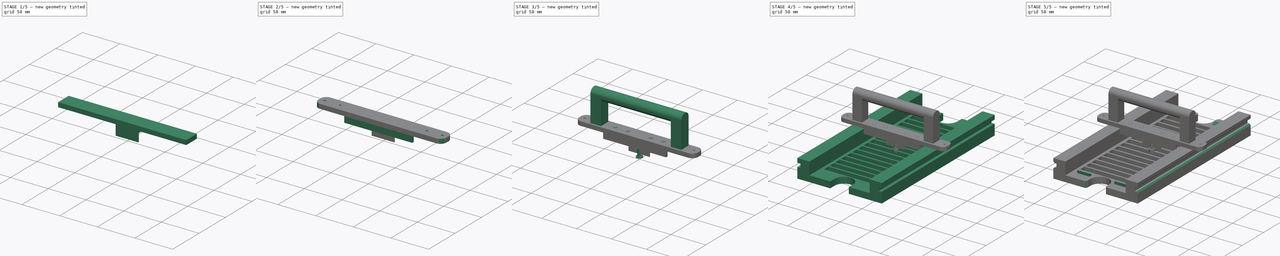
[diagram: build sequence overview — one tinted view per stage of 5, left to right]
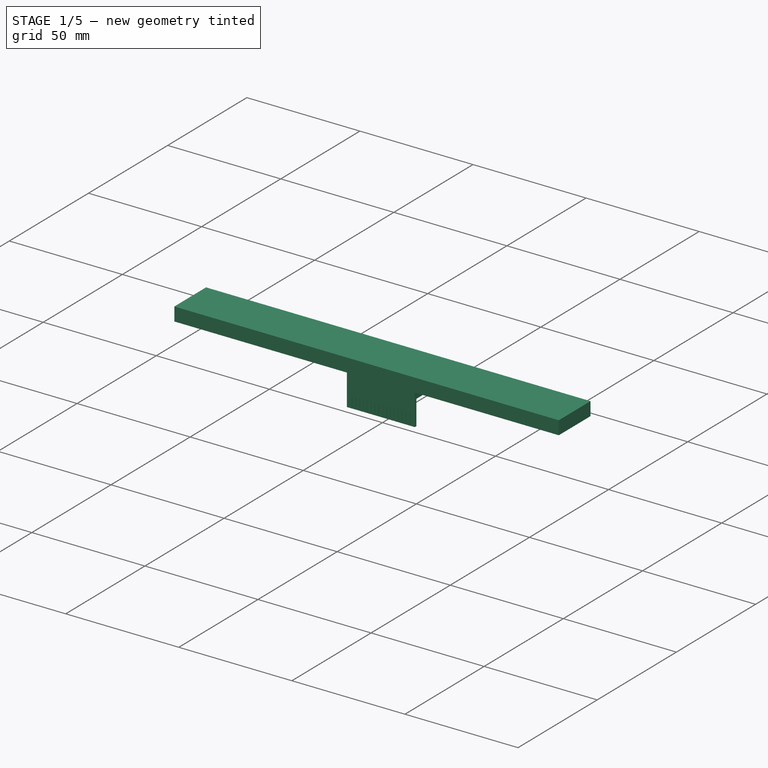
[diagram: stage 1 of 5 — iso view after this stage's code; geometry added in this stage tinted green]
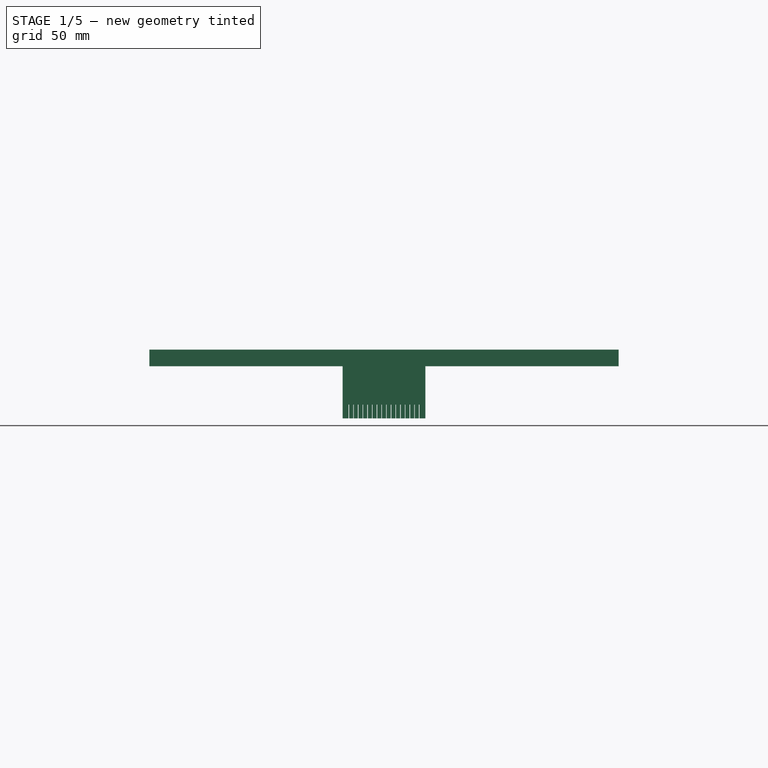
[diagram: stage 1 of 5 — front view after this stage's code; geometry added in this stage tinted green]
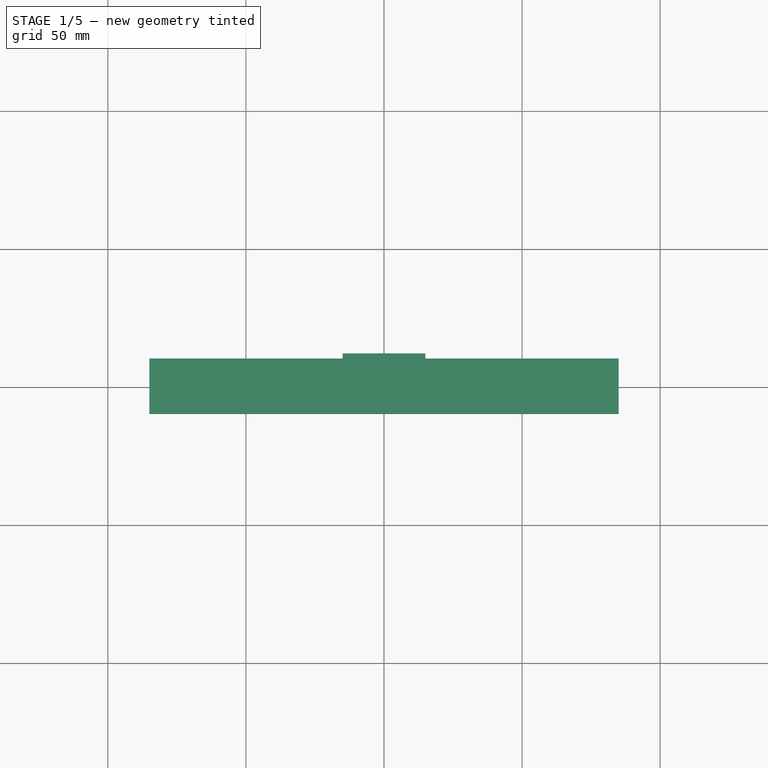
[diagram: stage 1 of 5 — top view after this stage's code; geometry added in this stage tinted green]
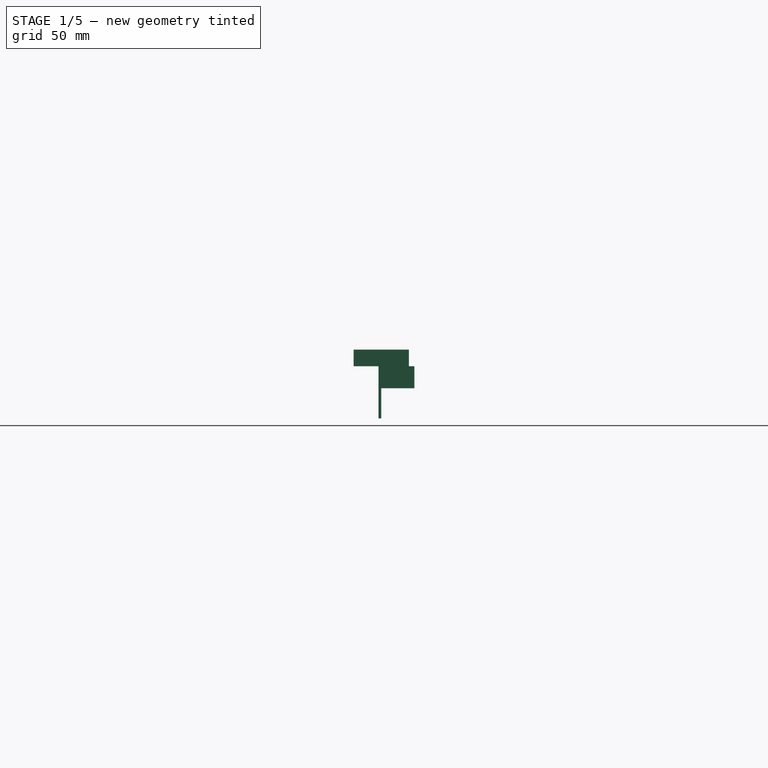
[diagram: stage 1 of 5 — right view after this stage's code; geometry added in this stage tinted green]
FCSTD DOCUMENT  (FreeCAD 0.21R33668 +26 (Git))
Label: pogo_pin_test_jig
License: All rights reserved
LicenseURL: https://en.wikipedia.org/wiki/All_rights_reserved
objects: Sketcher::SketchObject×14, PartDesign::Pad×9, PartDesign::Body×6, PartDesign::Plane×4, PartDesign::Mirrored×3, PartDesign::Fillet×3, PartDesign::Pocket×2, PartDesign::Hole×2, PartDesign::Chamfer×1, PartDesign::Revolution×1
note: 63 computed .brp shape members not serialized (recipe doc carries the construction recipe); baked Part::Feature solids carry a one-line shape summary decoded from their .brp

FEATURE [Sketcher::SketchObject] Sketch002
  FullyConstrained = true
  MapMode = 5
  Placement = pos=(0,0,0) rot=(1,0,0;1.5708rad)
  Support = -> [XZ_Plane001]
  sketch-geometry (26):
    g0: LineSegment StartX=-85 StartY=23.5 StartZ=0 EndX=85 EndY=23.5 EndZ=0
    g1: LineSegment StartX=50 StartY=29.5 StartZ=0 EndX=-50 EndY=29.5 EndZ=0
    g2: LineSegment StartX=66.02 StartY=6.865 StartZ=0 EndX=66.02 EndY=13.135 EndZ=0
    g3: LineSegment StartX=68.385 StartY=15.5 StartZ=0 EndX=90.16 EndY=15.5 EndZ=0
    g4: LineSegment StartX=90.16 StartY=15.5 StartZ=0 EndX=90.16 EndY=4.5 EndZ=0
    g5: LineSegment StartX=90.16 StartY=4.5 StartZ=0 EndX=68.385 EndY=4.5 EndZ=0
    g6: LineSegment StartX=66.02 StartY=13.135 StartZ=0 EndX=68.385 EndY=15.5 EndZ=0
    g7: LineSegment StartX=66.02 StartY=6.865 StartZ=0 EndX=68.385 EndY=4.5 EndZ=0
    g8: LineSegment StartX=66.02 StartY=10 StartZ=0 EndX=90.16 EndY=10 EndZ=0
    g9: GeomPoint X=78.09 Y=10 Z=0
    g10: LineSegment StartX=78.09 StartY=10 StartZ=0 EndX=78.09 EndY=23.5 EndZ=0
    g11: LineSegment StartX=-65 StartY=74.5 StartZ=0 EndX=65 EndY=74.5 EndZ=0
    g12: LineSegment StartX=-50 StartY=29.5 StartZ=0 EndX=-50 EndY=59.5 EndZ=0
    g13: LineSegment StartX=-50 StartY=59.5 StartZ=0 EndX=50 EndY=59.5 EndZ=0
    g14: LineSegment StartX=50 StartY=59.5 StartZ=0 EndX=50 EndY=29.5 EndZ=0
    g15: GeomPoint X=0 Y=29.5 Z=0
    g16: GeomPoint X=0 Y=23.5 Z=0
    g17: LineSegment StartX=65 StartY=74.5 StartZ=0 EndX=65 EndY=29.5 EndZ=0
    g18: LineSegment StartX=65 StartY=29.5 StartZ=0 EndX=85 EndY=29.5 EndZ=0
    g19: LineSegment StartX=85 StartY=29.5 StartZ=0 EndX=85 EndY=23.5 EndZ=0
    g20: LineSegment StartX=-65 StartY=74.5 StartZ=0 EndX=-65 EndY=29.5 EndZ=0
    g21: LineSegment StartX=-65 StartY=29.5 StartZ=0 EndX=-85 EndY=29.5 EndZ=0
    g22: LineSegment StartX=-85 StartY=29.5 StartZ=0 EndX=-85 EndY=23.5 EndZ=0
    g23: LineSegment StartX=-65 StartY=29.5 StartZ=0 EndX=-50 EndY=29.5 EndZ=0
    g24: LineSegment StartX=50 StartY=29.5 StartZ=0 EndX=65 EndY=29.5 EndZ=0
    g25: GeomPoint X=-57.5 Y=29.5 Z=0
  constraints (69):
    c: Horizontal(g0)
    c: Horizontal(g1)
    c: Coincident(g3,g4)
    c: Coincident(g4,g5)
    c: Horizontal(g3)
    c: Horizontal(g5)
    c: Vertical(g2)
    c: Vertical(g4)
    c: DistanceY(g4,g4) = 11
    c: Coincident(g2,g6)
    c: Coincident(g3,g6)
    c: Coincident(g2,g7)
    c: Coincident(g5,g7)
    c: Angle(g5,g7) = 2.35619
    c: Angle(g6,g3) = 2.35619
    c: DistanceY(g2,g2) = 6.27
    c: PointOnObject(g8,g4)
    c: Horizontal(g8)
    c: Symmetric(g2,g2,g8)
    c: Equal(g6,g7)
    c: DistanceY(g3,g0) = 8
    c: DistanceY(g-1,g4) = 4.5
    c: DistanceX(g8,g8) = 24.14
    c: Symmetric(g8,g8,g9)
    c: Coincident(g10,g9)
    c: PointOnObject(g10,g0)
    c: Vertical(g10)
    c: DistanceX(g-1,g10) = 78.09
    c: Vertical(g12)
    c: Coincident(g13,g12)
    c: Horizontal(g13)
    c: Coincident(g14,g13)
    c: Vertical(g14)
    c: Coincident(g1,g12)
    c: Coincident(g1,g14)
    c: Symmetric(g1,g1,g15)
    c: PointOnObject(g15,g-2)
    c: DistanceY(g13,g11) = 15
    c: DistanceY(g12,g12) = 30
    c: DistanceX(g13,g11) = 15
    c: Symmetric(g0,g0,g16)
    c: PointOnObject(g16,g-2)
    c: DistanceX(g11,g11) = 130
    c: DistanceY(g0,g1) = 6
    c: Symmetric(g11,g11,g-2)
    c: Coincident(g17,g11)
    c: Vertical(g17)
    c: Coincident(g18,g17)
    c: Coincident(g19,g18)
    c: Coincident(g19,g0)
    c: Horizontal(g18)
    c: Horizontal(g17,g1)
    c: Coincident(g20,g11)
    c: Vertical(g20)
    c: Coincident(g21,g20)
    c: Horizontal(g21)
    c: Coincident(g22,g0)
    c: Coincident(g22,g21)
    c: Vertical(g22)
    c: Horizontal(g20,g1)
    c: DistanceX(g0,g0) = 170
    c: Vertical(g19)
    c: DistanceX(g15,g10) = 78.09
    c: Coincident(g23,g20)
    c: Coincident(g24,g1)
    c: Coincident(g24,g17)
    c: Coincident(g23,g1)
    c: Symmetric(g1,g21,g25)
    c: DistanceX(g25,g15) = 57.5
FEATURE [PartDesign::Pad] Pad002
  Direction = (0,-1,2e-16)
  Length = 20
  Length2 = 10
  Midplane = true
  Placement = pos=(0,0,0) rot=(1,0,0;1.5708rad)
  Profile = -> Sketch002
  ReferenceAxis = -> Sketch002 [N_Axis]
  Refine = true
  Type = 0
FEATURE [PartDesign::Body] Body001  label="Handle sheet"
  Group = -> [Sketch002,Pad002,Fillet001,Sketch005,Pocket001,DatumPlane001,Sketch008,Pad005,Sketch012,Sketch013,Hole,DatumPlane002,Hole001]
  Origin = -> Origin001
  Tip = -> Hole001
FEATURE [PartDesign::Plane] CopyDatumPlane001
  Length = 60
  Placement = pos=(0,0,23.5) rot=(0,0,1;0rad)
  ResizeMode = 0
  Width = 60
FEATURE [Sketcher::SketchObject] Sketch014
  FullyConstrained = true
  MapMode = 5
  Placement = pos=(0,0,23.5) rot=(0,0,1;0rad)
  Support = -> [CopyDatumPlane001]
  sketch-geometry (8):
    g0: LineSegment StartX=-15 StartY=0 StartZ=0 EndX=15 EndY=0 EndZ=0
    g1: LineSegment StartX=15 StartY=0 StartZ=0 EndX=15 EndY=12 EndZ=0
    g2: LineSegment StartX=15 StartY=12 StartZ=0 EndX=-15 EndY=12 EndZ=0
    g3: LineSegment StartX=-15 StartY=12 StartZ=0 EndX=-15 EndY=0 EndZ=0
    g4: LineSegment StartX=-9 StartY=7 StartZ=0 EndX=9 EndY=7 EndZ=0
    g5: LineSegment StartX=0 StartY=12 StartZ=0 EndX=0 EndY=0 EndZ=0
    g6: Circle CenterX=-9 CenterY=7 CenterZ=0 NormalX=0 NormalY=0 NormalZ=1 AngleXU=0 Radius=1.35
    g7: Circle CenterX=9 CenterY=7 CenterZ=0 NormalX=0 NormalY=0 NormalZ=1 AngleXU=0 Radius=1.35
  constraints (21):
    c: Coincident(g0,g1)
    c: Coincident(g1,g2)
    c: Coincident(g2,g3)
    c: Coincident(g3,g0)
    c: Horizontal(g0)
    c: Horizontal(g2)
    c: Vertical(g1)
    c: Vertical(g3)
    c: PointOnObject(g5,g0)
    c: DistanceX(g4,g4) = 18
    c: Symmetric(g4,g4,g5)
    c: Symmetric(g1,g2,g5)
    c: DistanceY(g1,g1) = 12
    c: DistanceX(g0,g0) = 30
    c: Coincident(g6,g4)
    c: Coincident(g7,g4)
    c: Diameter(g6) = 2.7
    c: Equal(g6,g7)
    c: PointOnObject(g5,g-2)
    c: DistanceY(g0,g6) = 7
    c: Coincident(g5,g-1)
FEATURE [PartDesign::Pad] Pad007
  Direction = (0,0,1)
  Length = 8
  Length2 = 10
  Placement = pos=(0,0,23.5) rot=(0,0,1;0rad)
  Profile = -> Sketch014
  ReferenceAxis = -> Sketch014 [N_Axis]
  Reversed = true
  Type = 0
FEATURE [Sketcher::SketchObject] Sketch015
  FullyConstrained = true
  MapMode = 5
  Placement = pos=(0,0,0) rot=(1,0,0;1.5708rad)
  Support = -> [XZ_Plane005]
  sketch-geometry (44):
    g0: LineSegment StartX=-15 StartY=23.5 StartZ=0 EndX=-15 EndY=4.6 EndZ=0
    g1: LineSegment StartX=-15 StartY=4.6 StartZ=0 EndX=-12.85 EndY=4.6 EndZ=0
    g2: LineSegment StartX=0 StartY=4.6 StartZ=0 EndX=0 EndY=23.5 EndZ=0
    g3: LineSegment StartX=0 StartY=23.5 StartZ=0 EndX=-15 EndY=23.5 EndZ=0
    g4: LineSegment StartX=-10.95 StartY=4.6 StartZ=0 EndX=-10.95 EndY=9.6 EndZ=0
    g5: LineSegment StartX=-10.95 StartY=9.6 StartZ=0 EndX=-11.15 EndY=9.6 EndZ=0
    g6: LineSegment StartX=-11.15 StartY=9.6 StartZ=0 EndX=-11.15 EndY=4.6 EndZ=0
    g7: LineSegment StartX=-9.25 StartY=4.6 StartZ=0 EndX=-9.25 EndY=9.6 EndZ=0
    g8: LineSegment StartX=-9.25 StartY=9.6 StartZ=0 EndX=-9.45 EndY=9.6 EndZ=0
    g9: LineSegment StartX=-9.45 StartY=9.6 StartZ=0 EndX=-9.45 EndY=4.6 EndZ=0
    g10: LineSegment StartX=-7.55 StartY=4.6 StartZ=0 EndX=-7.55 EndY=9.6 EndZ=0
    g11: LineSegment StartX=-7.55 StartY=9.6 StartZ=0 EndX=-7.75 EndY=9.6 EndZ=0
    g12: LineSegment StartX=-7.75 StartY=9.6 StartZ=0 EndX=-7.75 EndY=4.6 EndZ=0
    g13: LineSegment StartX=-5.85 StartY=4.6 StartZ=0 EndX=-5.85 EndY=9.6 EndZ=0
    g14: LineSegment StartX=-5.85 StartY=9.6 StartZ=0 EndX=-6.05 EndY=9.6 EndZ=0
    g15: LineSegment StartX=-6.05 StartY=9.6 StartZ=0 EndX=-6.05 EndY=4.6 EndZ=0
    g16: LineSegment StartX=-4.15 StartY=4.6 StartZ=0 EndX=-4.15 EndY=9.6 EndZ=0
    g17: LineSegment StartX=-4.15 StartY=9.6 StartZ=0 EndX=-4.35 EndY=9.6 EndZ=0
    g18: LineSegment StartX=-4.35 StartY=9.6 StartZ=0 EndX=-4.35 EndY=4.6 EndZ=0
    g19: LineSegment StartX=-2.45 StartY=4.6 StartZ=0 EndX=-2.45 EndY=9.6 EndZ=0
    g20: LineSegment StartX=-2.45 StartY=9.6 StartZ=0 EndX=-2.65 EndY=9.6 EndZ=0
    g21: LineSegment StartX=-2.65 StartY=9.6 StartZ=0 EndX=-2.65 EndY=4.6 EndZ=0
    g22: LineSegment StartX=-12.65 StartY=4.6 StartZ=0 EndX=-12.65 EndY=9.6 EndZ=0
    g23: LineSegment StartX=-12.65 StartY=9.6 StartZ=0 EndX=-12.85 EndY=9.6 EndZ=0
    g24: LineSegment StartX=-12.85 StartY=9.6 StartZ=0 EndX=-12.85 EndY=4.6 EndZ=0
    g25: LineSegment StartX=-12.65 StartY=4.6 StartZ=0 EndX=-11.15 EndY=4.6 EndZ=0
    g26: LineSegment StartX=-10.95 StartY=4.6 StartZ=0 EndX=-9.45 EndY=4.6 EndZ=0
    g27: LineSegment StartX=-9.25 StartY=4.6 StartZ=0 EndX=-7.75 EndY=4.6 EndZ=0
    g28: LineSegment StartX=-7.55 StartY=4.6 StartZ=0 EndX=-6.05 EndY=4.6 EndZ=0
    g29: LineSegment StartX=-5.85 StartY=4.6 StartZ=0 EndX=-4.35 EndY=4.6 EndZ=0
    g30: LineSegment StartX=-4.15 StartY=4.6 StartZ=0 EndX=-2.65 EndY=4.6 EndZ=0
    g31: LineSegment StartX=-0.75 StartY=4.6 StartZ=0 EndX=-0.75 EndY=9.6 EndZ=0
    g32: LineSegment StartX=-0.75 StartY=9.6 StartZ=0 EndX=-0.95 EndY=9.6 EndZ=0
    g33: LineSegment StartX=-0.95 StartY=9.6 StartZ=0 EndX=-0.95 EndY=4.6 EndZ=0
    g34: LineSegment StartX=-2.45 StartY=4.6 StartZ=0 EndX=-0.95 EndY=4.6 EndZ=0
    g35: LineSegment StartX=-0.75 StartY=4.6 StartZ=0 EndX=0.75 EndY=4.6 EndZ=0
    g36: LineSegment StartX=-12.65 StartY=4.6 StartZ=0 EndX=-11.15 EndY=4.6 EndZ=0
    g37: LineSegment StartX=-10.95 StartY=4.6 StartZ=0 EndX=-9.45 EndY=4.6 EndZ=0
    g38: LineSegment StartX=-9.25 StartY=4.6 StartZ=0 EndX=-7.75 EndY=4.6 EndZ=0
    g39: LineSegment StartX=-7.55 StartY=4.6 StartZ=0 EndX=-6.05 EndY=4.6 EndZ=0
    g40: LineSegment StartX=-5.85 StartY=4.6 StartZ=0 EndX=-4.35 EndY=4.6 EndZ=0
    g41: LineSegment StartX=-4.15 StartY=4.6 StartZ=0 EndX=-2.65 EndY=4.6 EndZ=0
    g42: LineSegment StartX=-2.45 StartY=4.6 StartZ=0 EndX=-0.95 EndY=4.6 EndZ=0
    g43: LineSegment StartX=-0.75 StartY=4.6 StartZ=0 EndX=0 EndY=4.6 EndZ=0
  constraints (124):
    c: Vertical(g0)
    c: DistanceY(g0,g0) = 18.9
    c: DistanceX(g0,g-1) = 15
    c: DistanceY(g-1,g0) = 23.5
    c: Coincident(g1,g0)
    c: PointOnObject(g43,g-2)
    c: Horizontal(g1)
    c: Coincident(g2,g43)
    c: PointOnObject(g2,g-2)
    c: Coincident(g3,g2)
    c: Coincident(g3,g0)
    c: Horizontal(g3)
    c: Coincident(g4,g5)
    c: Coincident(g5,g6)
    c: Horizontal(g5)
    c: Vertical(g4)
    c: Vertical(g6)
    c: PointOnObject(g6,g1)
    c: Coincident(g7,g8)
    c: Coincident(g8,g9)
    c: Horizontal(g8)
    c: Vertical(g7)
    c: Vertical(g9)
    c: PointOnObject(g9,g1)
    c: Coincident(g10,g11)
    c: Coincident(g11,g12)
    c: Horizontal(g11)
    c: Vertical(g10)
    c: Vertical(g12)
    c: PointOnObject(g12,g1)
    c: Coincident(g13,g14)
    c: Coincident(g14,g15)
    c: Horizontal(g14)
    c: Vertical(g13)
    c: Vertical(g15)
    c: PointOnObject(g15,g1)
    c: Coincident(g16,g17)
    c: Coincident(g17,g18)
    c: Horizontal(g17)
    c: Vertical(g16)
    c: Vertical(g18)
    c: PointOnObject(g18,g1)
    c: Coincident(g19,g20)
    c: Coincident(g20,g21)
    c: Horizontal(g20)
    c: Vertical(g19)
    c: Vertical(g21)
    c: PointOnObject(g21,g1)
    c: Coincident(g22,g23)
    c: Coincident(g23,g24)
    c: Horizontal(g23)
    c: Vertical(g22)
    c: Vertical(g24)
    c: Equal(g24,g6)
    c: Equal(g6,g9)
    c: Equal(g9,g12)
    c: Equal(g12,g15)
    c: Equal(g15,g18)
    c: Equal(g18,g21)
    c: Equal(g23,g5)
    c: Equal(g5,g8)
    c: Equal(g8,g11)
    c: Equal(g11,g14)
    c: Equal(g14,g17)
    c: Equal(g17,g20)
    c: Equal(g25,g26)
    c: Equal(g26,g27)
    c: Equal(g27,g28)
    c: Equal(g28,g29)
    c: Equal(g29,g30)
    c: DistanceX(g25,g25) = 1.5
    c: DistanceY(g24,g24) = 5
    c: DistanceX(g23,g23) = 0.2
    c: Coincident(g31,g32)
    c: Coincident(g32,g33)
    c: Horizontal(g32)
    c: Vertical(g31)
    c: Vertical(g33)
    c: PointOnObject(g33,g1)
    c: Equal(g24,g33)
    c: Equal(g23,g32)
    c: Equal(g25,g34)
    c: Equal(g34,g35)
    c: Symmetric(g35,g31,g2)
    c: Coincident(g6,g25)
    c: Coincident(g4,g26)
    c: Coincident(g22,g25)
    c: Coincident(g7,g27)
    c: Coincident(g10,g28)
    c: Coincident(g13,g29)
    c: Coincident(g16,g30)
    c: Coincident(g19,g34)
    c: Coincident(g31,g35)
    c: Coincident(g26,g9)
    c: Horizontal(g26)
    c: Coincident(g27,g12)
    c: Coincident(g28,g15)
    c: Coincident(g30,g21)
    c: Coincident(g29,g18)
    c: Coincident(g34,g33)
    c: Horizontal(g30)
    c: Horizontal(g34)
    c: Horizontal(g35)
    c: Horizontal(g25)
    c: Horizontal(g27)
    c: Horizontal(g28)
    c: Horizontal(g29)
    c: Coincident(g1,g24)
    c: Horizontal(g31,g33)
    c: Coincident(g43,g31)
    c: Coincident(g42,g33)
    c: Coincident(g42,g19)
    c: Coincident(g21,g41)
    c: Coincident(g16,g41)
    c: Coincident(g40,g18)
    c: Coincident(g40,g13)
    c: Coincident(g15,g39)
    c: Coincident(g10,g39)
    c: Coincident(g12,g38)
    c: Coincident(g38,g7)
    c: Coincident(g9,g37)
    c: Coincident(g37,g4)
    c: Coincident(g6,g36)
    c: Coincident(g36,g22)
FEATURE [PartDesign::Pad] Pad008
  BaseFeature = -> Pad007
  Direction = (0,-1,-2e-16)
  Length = 1
  Length2 = 10
  Placement = pos=(0,0,23.5) rot=(0,0,1;0rad)
  Profile = -> Sketch015
  ReferenceAxis = -> Sketch015 [N_Axis]
  Type = 0
FEATURE [PartDesign::Mirrored] Mirrored002
  BaseFeature = -> Pad008
  MirrorPlane = -> Sketch015 [V_Axis]
  Originals = -> [Pad008]
  Placement = pos=(0,0,23.5) rot=(0,0,1;0rad)
FEATURE [PartDesign::Body] Body005  label="Comb"
  Group = -> [CopyDatumPlane001,Sketch014,Pad007,Sketch015,Pad008,Mirrored002]
  Origin = -> Origin005
  Tip = -> Mirrored002
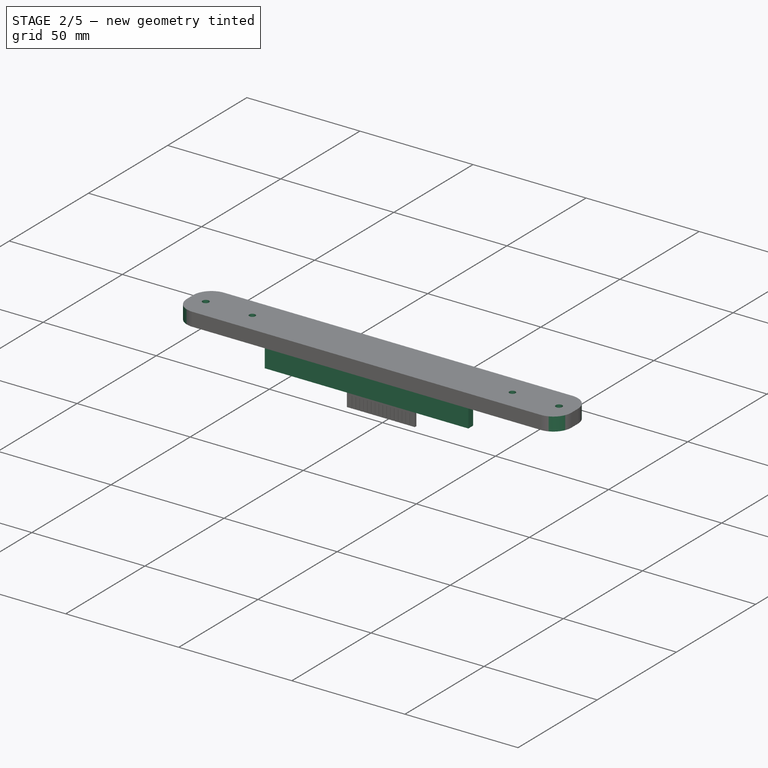
[diagram: stage 2 of 5 — iso view after this stage's code; geometry added in this stage tinted green]
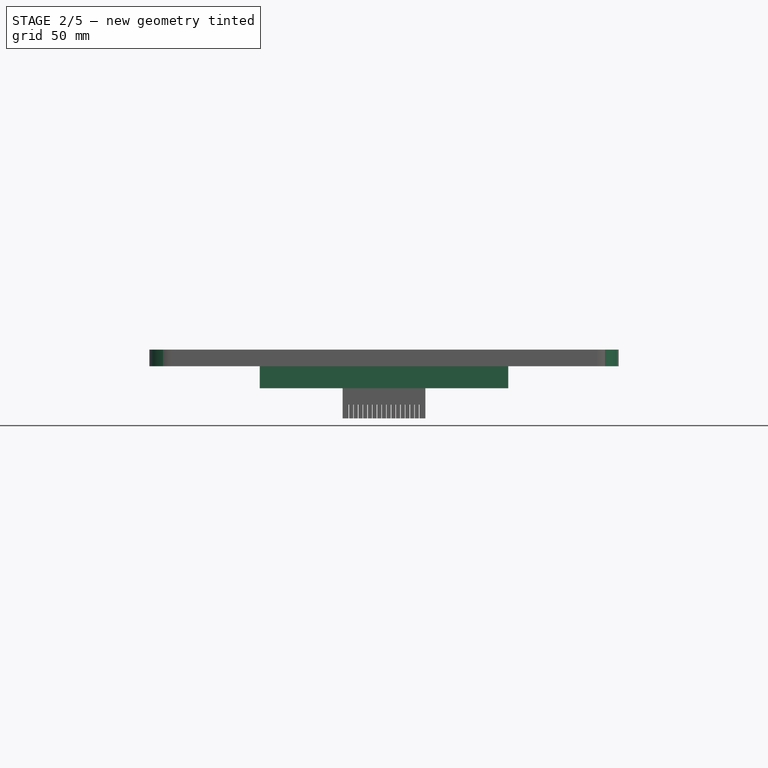
[diagram: stage 2 of 5 — front view after this stage's code; geometry added in this stage tinted green]
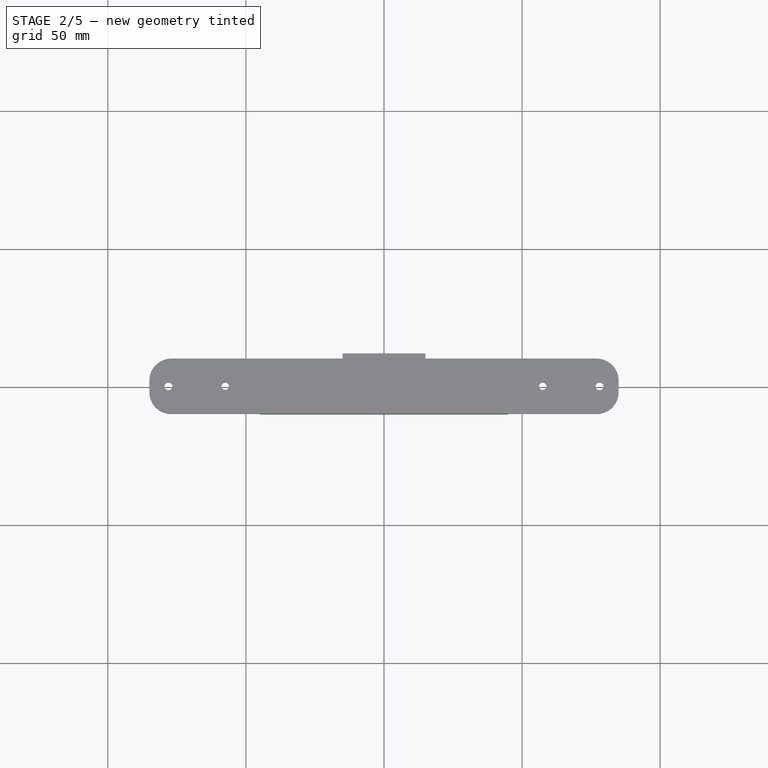
[diagram: stage 2 of 5 — top view after this stage's code; geometry added in this stage tinted green]
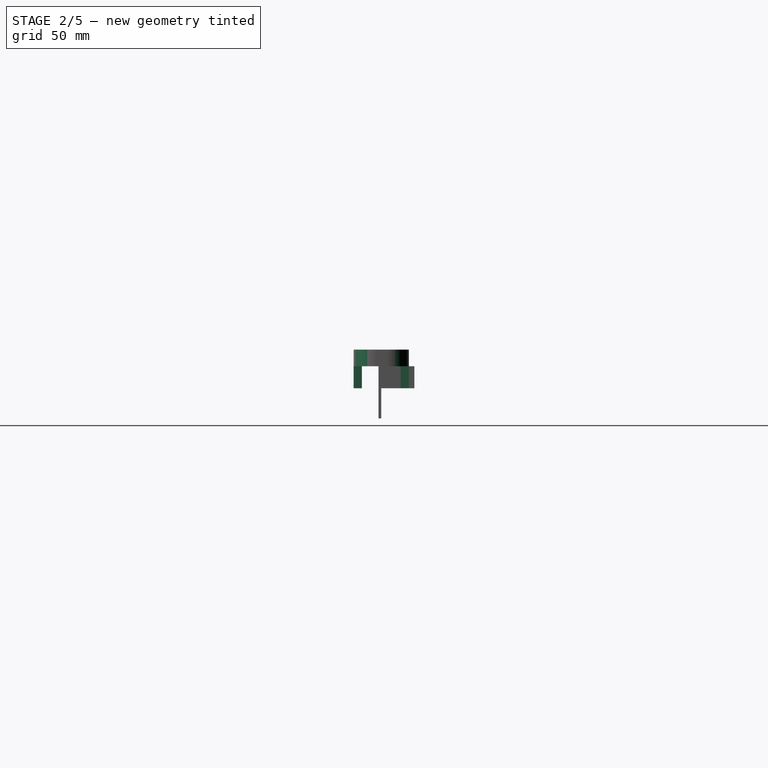
[diagram: stage 2 of 5 — right view after this stage's code; geometry added in this stage tinted green]
FEATURE [PartDesign::Body] Body003  label="Body"
  Group = -> [Sketch007,Revolution]
  Origin = -> Origin003
  Tip = -> Revolution
FEATURE [PartDesign::Plane] DatumPlane001
  AttachmentOffset = pos=(0,0,23.5) rot=(0,0,1;0rad)
  Length = 188.439
  MapMode = 5
  Placement = pos=(0,0,23.5) rot=(0,0,1;0rad)
  ResizeMode = 0
  Support = -> [XY_Plane001]
  Width = 68.4391
FEATURE [Sketcher::SketchObject] Sketch008
  FullyConstrained = true
  MapMode = 5
  Placement = pos=(0,0,23.5) rot=(0,0,1;0rad)
  Support = -> [DatumPlane001]
  sketch-geometry (10):
    g0: LineSegment StartX=-45 StartY=7 StartZ=0 EndX=45 EndY=7 EndZ=0
    g1: LineSegment StartX=45 StartY=-7 StartZ=0 EndX=-45 EndY=-7 EndZ=0
    g2: GeomPoint X=0 Y=0 Z=0
    g3: LineSegment StartX=-45 StartY=-10 StartZ=0 EndX=-45 EndY=-7 EndZ=0
    g4: LineSegment StartX=-45 StartY=10 StartZ=0 EndX=45 EndY=10 EndZ=0
    g5: LineSegment StartX=45 StartY=10 StartZ=0 EndX=45 EndY=7 EndZ=0
    g6: LineSegment StartX=45 StartY=-10 StartZ=0 EndX=-45 EndY=-10 EndZ=0
    g7: GeomPoint X=0 Y=0 Z=0
    g8: LineSegment StartX=-45 StartY=7 StartZ=0 EndX=-45 EndY=10 EndZ=0
    g9: LineSegment StartX=45 StartY=-7 StartZ=0 EndX=45 EndY=-10 EndZ=0
  constraints (25):
    c: Horizontal(g0)
    c: Symmetric(g0,g1,g2)
    c: Coincident(g2,g-1)
    c: Coincident(g8,g4)
    c: Coincident(g4,g5)
    c: Coincident(g9,g6)
    c: Coincident(g6,g3)
    c: Horizontal(g6)
    c: Vertical(g3)
    c: Vertical(g5)
    c: Symmetric(g4,g3,g7)
    c: Coincident(g7,g2)
    c: DistanceX(g4,g4) = 90
    c: DistanceY(g9,g5) = 20
    c: DistanceY(g0,g4) = 3
    c: DistanceY(g1,g0) = 14
    c: DistanceX(g0,g0) = 90
    c: PointOnObject(g3,g1)
    c: Coincident(g8,g0)
    c: Coincident(g5,g0)
    c: Coincident(g9,g1)
    c: Symmetric(g1,g1,g-2)
    c: Vertical(g9)
    c: Symmetric(g4,g4,g-2)
    c: Vertical(g8)
FEATURE [PartDesign::Fillet] Fillet001
  Base = -> Pad002 [Edge4,Edge10,Edge9,Edge3]
  BaseFeature = -> Pad002
  Placement = pos=(0,0,0) rot=(1,0,0;1.5708rad)
  Radius = 8
  SupportTransform = false
  UseAllEdges = false
FEATURE [PartDesign::Pocket] Pocket001
  BaseFeature = -> Fillet001
  Direction = (0,0,-1)
  Length = 5
  Length2 = 5
  Midplane = true
  Placement = pos=(0,0,0) rot=(1,0,0;1.5708rad)
  Profile = -> Sketch005
  ReferenceAxis = -> Sketch005 [N_Axis]
  Type = 1
FEATURE [PartDesign::Pad] Pad005
  BaseFeature = -> Pocket001
  Direction = (0,0,1)
  Length = 8
  Length2 = 10
  Placement = pos=(0,0,0) rot=(1,0,0;1.5708rad)
  Profile = -> Sketch008
  ReferenceAxis = -> Sketch008 [N_Axis]
  Reversed = true
  Type = 0
FEATURE [PartDesign::Body] Body004  label="Handle"
  Group = -> [Sketch010,Pad006,Fillet,Sketch011,Pocket002]
  Origin = -> Origin004
  Tip = -> Pocket002
FEATURE [Sketcher::SketchObject] Sketch012
  FullyConstrained = true
  MapMode = 5
  Placement = pos=(0,0,23.5) rot=(0,0,1;0rad)
  Support = -> [DatumPlane001]
  sketch-geometry (2):
    g0: Circle CenterX=-57.5 CenterY=0 CenterZ=0 NormalX=0 NormalY=0 NormalZ=1 AngleXU=0 Radius=1.45
    g1: Circle CenterX=57.5 CenterY=0 CenterZ=0 NormalX=0 NormalY=0 NormalZ=1 AngleXU=0 Radius=1.45
  constraints (6):
    c: PointOnObject(g0,g-1)
    c: PointOnObject(g1,g-1)
    c: Equal(g0,g1)
    c: Diameter(g1) = 2.9
    c: DistanceX(g0,g-1) = 57.5
    c: DistanceX(g-1,g1) = 57.5
FEATURE [PartDesign::Hole] Hole
  BaseFeature = -> Pad005
  CustomThreadClearance = 0
  Depth = 25
  DepthType = 0
  Diameter = 2.7
  DrillForDepth = true
  DrillPoint = 1
  DrillPointAngle = 118
  HoleCutCountersinkAngle = 90
  HoleCutCustomValues = false
  HoleCutDepth = 0
  HoleCutDiameter = 6.1
  HoleCutType = 2
  ModelThread = false
  Placement = pos=(0,0,0) rot=(1,0,0;1.5708rad)
  Profile = -> Sketch012
  Reversed = true
  Tapered = false
  TaperedAngle = 90
  ThreadClass = 0
  ThreadDepth = 25
  ThreadDepthType = 0
  ThreadDirection = 0
  ThreadFit = 0
  ThreadSize = 0
  ThreadType = 0
  Threaded = false
  UseCustomThreadClearance = false
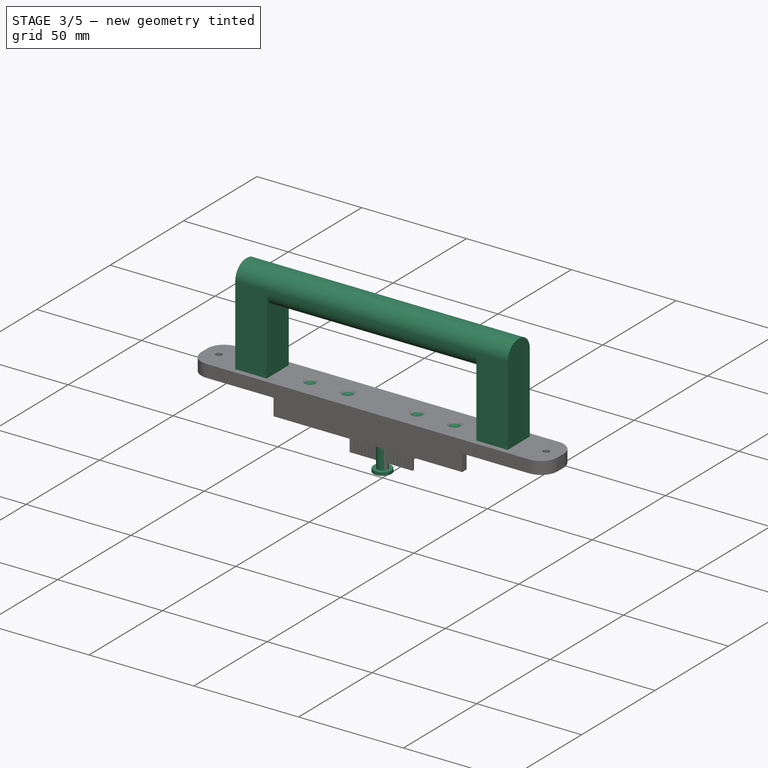
[diagram: stage 3 of 5 — iso view after this stage's code; geometry added in this stage tinted green]
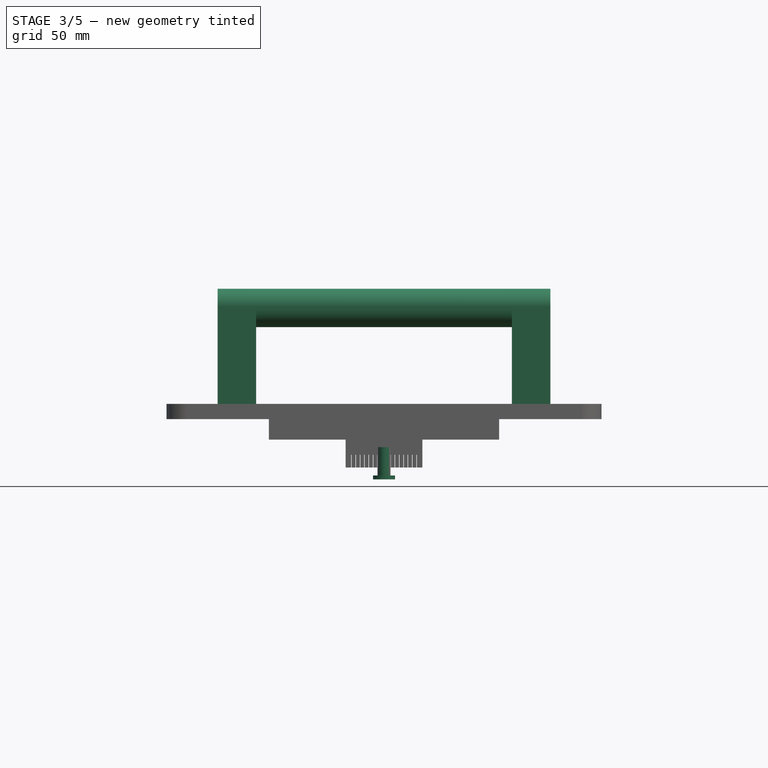
[diagram: stage 3 of 5 — front view after this stage's code; geometry added in this stage tinted green]
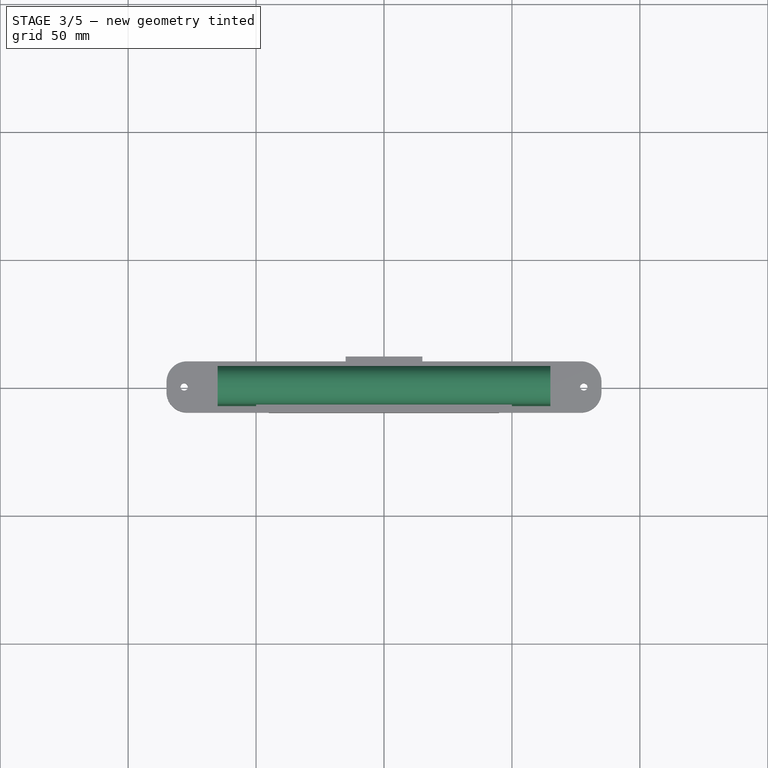
[diagram: stage 3 of 5 — top view after this stage's code; geometry added in this stage tinted green]
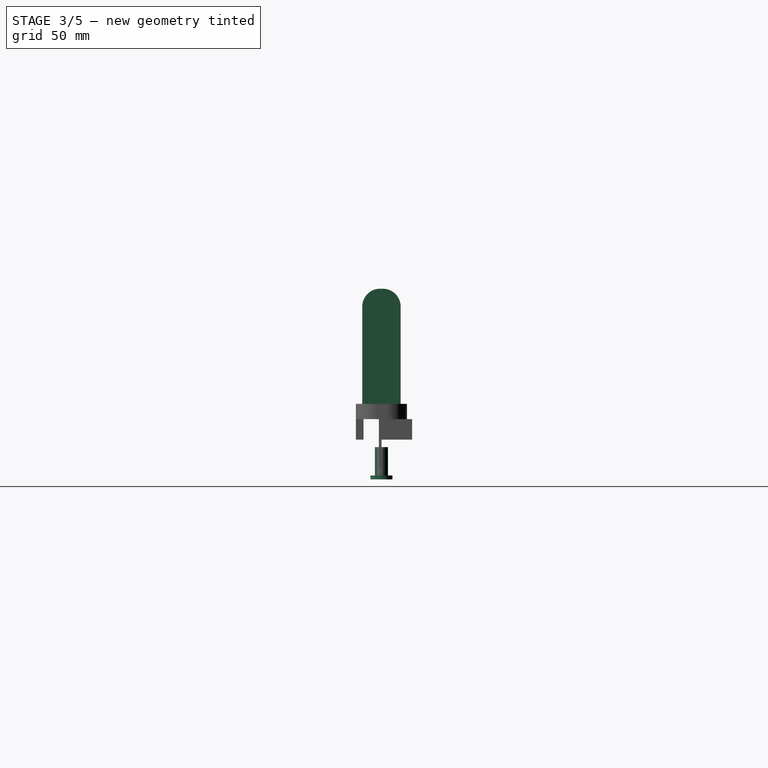
[diagram: stage 3 of 5 — right view after this stage's code; geometry added in this stage tinted green]
FEATURE [PartDesign::Body] Body002  label="Spacer"
  Group = -> [Sketch006,Pad004]
  Origin = -> Origin002
  Tip = -> Pad004
FEATURE [Sketcher::SketchObject] Sketch007
  FullyConstrained = true
  MapMode = 5
  Placement = pos=(0,0,0) rot=(1,0,0;1.5708rad)
  Support = -> [XZ_Plane003]
  sketch-geometry (6):
    g0: LineSegment StartX=1.5 StartY=0 StartZ=0 EndX=4.3 EndY=0 EndZ=0
    g1: LineSegment StartX=4.3 StartY=0 StartZ=0 EndX=4.3 EndY=1.5 EndZ=0
    g2: LineSegment StartX=4.3 StartY=1.5 StartZ=0 EndX=2.55 EndY=1.5 EndZ=0
    g3: LineSegment StartX=2.55 StartY=1.5 StartZ=0 EndX=2.55 EndY=12.56 EndZ=0
    g4: LineSegment StartX=2.55 StartY=12.56 StartZ=0 EndX=1.5 EndY=12.56 EndZ=0
    g5: LineSegment StartX=1.5 StartY=12.56 StartZ=0 EndX=1.5 EndY=0 EndZ=0
  constraints (18):
    c: PointOnObject(g0,g-1)
    c: Coincident(g1,g0)
    c: Vertical(g1)
    c: Coincident(g2,g1)
    c: Coincident(g3,g2)
    c: Vertical(g3)
    c: Coincident(g4,g3)
    c: Coincident(g5,g4)
    c: Horizontal(g4)
    c: Vertical(g5)
    c: Coincident(g0,g5)
    c: DistanceX(g-1,g0) = 1.5
    c: Horizontal(g2)
    c: Horizontal(g0)
    c: DistanceY(g1,g1) = 1.5
    c: DistanceY(g3,g3) = 11.06
    c: DistanceX(g-1,g0) = 4.3
    c: DistanceX(g-1,g3) = 2.55
FEATURE [PartDesign::Revolution] Revolution
  Angle = 360
  Axis = (0,-2e-16,1)
  Base = (0,0,0)
  Placement = pos=(0,0,0) rot=(1,0,0;1.5708rad)
  Profile = -> Sketch007
  ReferenceAxis = -> Sketch007 [V_Axis]
  Reversed = true
FEATURE [Sketcher::SketchObject] Sketch010
  FullyConstrained = true
  MapMode = 5
  Placement = pos=(0,0,0) rot=(1,0,0;1.5708rad)
  Support = -> [XZ_Plane004]
  sketch-geometry (27):
    g0: LineSegment StartX=-85 StartY=23.5 StartZ=0 EndX=85 EndY=23.5 EndZ=0
    g1: LineSegment StartX=50 StartY=29.5 StartZ=0 EndX=-50 EndY=29.5 EndZ=0
    g2: LineSegment StartX=66.02 StartY=6.865 StartZ=0 EndX=66.02 EndY=13.135 EndZ=0
    g3: LineSegment StartX=68.385 StartY=15.5 StartZ=0 EndX=90.16 EndY=15.5 EndZ=0
    g4: LineSegment StartX=90.16 StartY=15.5 StartZ=0 EndX=90.16 EndY=4.5 EndZ=0
    g5: LineSegment StartX=90.16 StartY=4.5 StartZ=0 EndX=68.385 EndY=4.5 EndZ=0
    g6: LineSegment StartX=66.02 StartY=13.135 StartZ=0 EndX=68.385 EndY=15.5 EndZ=0
    g7: LineSegment StartX=66.02 StartY=6.865 StartZ=0 EndX=68.385 EndY=4.5 EndZ=0
    g8: LineSegment StartX=66.02 StartY=10 StartZ=0 EndX=90.16 EndY=10 EndZ=0
    g9: GeomPoint X=78.09 Y=10 Z=0
    g10: LineSegment StartX=78.09 StartY=10 StartZ=0 EndX=78.09 EndY=23.5 EndZ=0
    g11: LineSegment StartX=-65 StartY=74.5 StartZ=0 EndX=65 EndY=74.5 EndZ=0
    g12: LineSegment StartX=-50 StartY=29.5 StartZ=0 EndX=-50 EndY=59.5 EndZ=0
    g13: LineSegment StartX=-50 StartY=59.5 StartZ=0 EndX=50 EndY=59.5 EndZ=0
    g14: LineSegment StartX=50 StartY=59.5 StartZ=0 EndX=50 EndY=29.5 EndZ=0
    g15: GeomPoint X=0 Y=29.5 Z=0
    g16: GeomPoint X=0 Y=23.5 Z=0
    g17: LineSegment StartX=65 StartY=74.5 StartZ=0 EndX=65 EndY=29.5 EndZ=0
    g18: LineSegment StartX=65 StartY=29.5 StartZ=0 EndX=85 EndY=29.5 EndZ=0
    g19: LineSegment StartX=85 StartY=29.5 StartZ=0 EndX=85 EndY=23.5 EndZ=0
    g20: LineSegment StartX=-65 StartY=74.5 StartZ=0 EndX=-65 EndY=29.5 EndZ=0
    g21: LineSegment StartX=-65 StartY=29.5 StartZ=0 EndX=-85 EndY=29.5 EndZ=0
    g22: LineSegment StartX=-85 StartY=29.5 StartZ=0 EndX=-85 EndY=23.5 EndZ=0
    g23: LineSegment StartX=-65 StartY=29.5 StartZ=0 EndX=-50 EndY=29.5 EndZ=0
    g24: LineSegment StartX=50 StartY=29.5 StartZ=0 EndX=65 EndY=29.5 EndZ=0
    g25: LineSegment StartX=-65 StartY=29.5 StartZ=0 EndX=-50 EndY=29.5 EndZ=0
    g26: LineSegment StartX=50 StartY=29.5 StartZ=0 EndX=65 EndY=29.5 EndZ=0
  constraints (71):
    c: Horizontal(g0)
    c: Horizontal(g1)
    c: Coincident(g3,g4)
    c: Coincident(g4,g5)
    c: Horizontal(g3)
    c: Horizontal(g5)
    c: Vertical(g2)
    c: Vertical(g4)
    c: DistanceY(g4,g4) = 11
    c: Coincident(g2,g6)
    c: Coincident(g3,g6)
    c: Coincident(g2,g7)
    c: Coincident(g5,g7)
    c: Angle(g5,g7) = 2.35619
    c: Angle(g6,g3) = 2.35619
    c: DistanceY(g2,g2) = 6.27
    c: PointOnObject(g8,g4)
    c: Horizontal(g8)
    c: Symmetric(g2,g2,g8)
    c: Equal(g6,g7)
    c: DistanceY(g3,g0) = 8
    c: DistanceY(g-1,g4) = 4.5
    c: DistanceX(g8,g8) = 24.14
    c: Symmetric(g8,g8,g9)
    c: Coincident(g10,g9)
    c: PointOnObject(g10,g0)
    c: Vertical(g10)
    c: DistanceX(g-1,g10) = 78.09
    c: Vertical(g12)
    c: Coincident(g13,g12)
    c: Horizontal(g13)
    c: Coincident(g14,g13)
    c: Vertical(g14)
    c: Coincident(g1,g12)
    c: Coincident(g1,g14)
    c: Symmetric(g1,g1,g15)
    c: PointOnObject(g15,g-2)
    c: DistanceY(g13,g11) = 15
    c: DistanceY(g12,g12) = 30
    c: DistanceX(g13,g11) = 15
    c: Symmetric(g0,g0,g16)
    c: PointOnObject(g16,g-2)
    c: DistanceX(g11,g11) = 130
    c: DistanceY(g0,g1) = 6
    c: Symmetric(g11,g11,g-2)
    c: Coincident(g17,g11)
    c: Vertical(g17)
    c: Coincident(g18,g17)
    c: Coincident(g19,g18)
    c: Coincident(g19,g0)
    c: Horizontal(g18)
    c: Horizontal(g17,g1)
    c: Coincident(g20,g11)
    c: Vertical(g20)
    c: Coincident(g21,g20)
    c: Horizontal(g21)
    c: Coincident(g22,g0)
    c: Coincident(g22,g21)
    c: Vertical(g22)
    c: Horizontal(g20,g1)
    c: DistanceX(g0,g0) = 170
    c: Vertical(g19)
    c: DistanceX(g15,g10) = 78.09
    c: Coincident(g23,g20)
    c: Coincident(g24,g1)
    c: Coincident(g24,g17)
    c: Coincident(g23,g1)
    c: Coincident(g25,g20)
    c: Coincident(g25,g12)
    c: Coincident(g26,g14)
    c: Coincident(g26,g17)
FEATURE [PartDesign::Pad] Pad006
  Direction = (0,-1,2e-16)
  Length = 15
  Length2 = 10
  Midplane = true
  Placement = pos=(0,0,0) rot=(1,0,0;1.5708rad)
  Profile = -> Sketch010
  ReferenceAxis = -> Sketch010 [N_Axis]
  Type = 0
FEATURE [PartDesign::Fillet] Fillet
  Base = -> Pad006 [Edge6,Edge7,Edge19,Edge18]
  BaseFeature = -> Pad006
  Placement = pos=(0,0,0) rot=(1,0,0;1.5708rad)
  Radius = 7
  SupportTransform = false
  UseAllEdges = false
FEATURE [Sketcher::SketchObject] Sketch011
  FullyConstrained = true
  MapMode = 5
  Support = -> [XY_Plane004]
  sketch-geometry (2):
    g0: Circle CenterX=-57.5 CenterY=0 CenterZ=0 NormalX=0 NormalY=0 NormalZ=1 AngleXU=0 Radius=1.45
    g1: Circle CenterX=57.5 CenterY=0 CenterZ=0 NormalX=0 NormalY=0 NormalZ=1 AngleXU=0 Radius=1.45
  constraints (6):
    c: PointOnObject(g0,g-1)
    c: PointOnObject(g1,g-1)
    c: Equal(g0,g1)
    c: DistanceX(g0,g-1) = 57.5
    c: DistanceX(g-1,g1) = 57.5
    c: Diameter(g0) = 2.9
FEATURE [PartDesign::Pocket] Pocket002
  BaseFeature = -> Fillet
  Direction = (0,0,-1)
  Length = 50
  Length2 = 5
  Placement = pos=(0,0,0) rot=(1,0,0;1.5708rad)
  Profile = -> Sketch011
  ReferenceAxis = -> Sketch011 [N_Axis]
  Reversed = true
  Type = 0
FEATURE [PartDesign::Plane] DatumPlane002
  AttachmentOffset = pos=(0,0,29.5) rot=(0,0,1;0rad)
  Length = 188.439
  MapMode = 5
  Placement = pos=(0,0,29.5) rot=(0,0,1;0rad)
  ResizeMode = 0
  Support = -> [XY_Plane001]
  Width = 68.4391
FEATURE [Sketcher::SketchObject] Sketch013
  FullyConstrained = true
  MapMode = 5
  Placement = pos=(0,0,29.5) rot=(0,0,1;0rad)
  Support = -> [DatumPlane002]
  sketch-geometry (4):
    g0: Circle CenterX=34.5 CenterY=0 CenterZ=0 NormalX=0 NormalY=0 NormalZ=1 AngleXU=0 Radius=1.45
    g1: Circle CenterX=16.5 CenterY=0 CenterZ=0 NormalX=0 NormalY=0 NormalZ=1 AngleXU=0 Radius=1.45
    g2: Circle CenterX=-34.5 CenterY=0 CenterZ=0 NormalX=0 NormalY=0 NormalZ=1 AngleXU=0 Radius=1.45
    g3: Circle CenterX=-16.5 CenterY=0 CenterZ=0 NormalX=0 NormalY=0 NormalZ=1 AngleXU=0 Radius=1.45
  constraints (11):
    c: PointOnObject(g0,g-1)
    c: PointOnObject(g1,g-1)
    c: PointOnObject(g2,g-1)
    c: Equal(g2,g3)
    c: Equal(g3,g1)
    c: Equal(g1,g0)
    c: DistanceX(g1,g0) = 18
    c: DistanceX(g2,g3) = 18
    c: DistanceX(g3,g1) = 33
    c: Symmetric(g3,g1,g-1)
    c: Diameter(g0) = 2.9
FEATURE [PartDesign::Hole] Hole001
  BaseFeature = -> Hole
  CustomThreadClearance = 0
  Depth = 25
  DepthType = 0
  Diameter = 2.7
  DrillForDepth = false
  DrillPoint = 1
  DrillPointAngle = 118
  HoleCutCountersinkAngle = 90
  HoleCutCustomValues = false
  HoleCutDepth = 0
  HoleCutDiameter = 6.1
  HoleCutType = 2
  ModelThread = false
  Placement = pos=(0,0,0) rot=(1,0,0;1.5708rad)
  Profile = -> Sketch013
  Tapered = false
  TaperedAngle = 90
  ThreadClass = 0
  ThreadDepth = 25
  ThreadDepthType = 0
  ThreadDirection = 0
  ThreadFit = 0
  ThreadSize = 0
  ThreadType = 0
  Threaded = false
  UseCustomThreadClearance = false
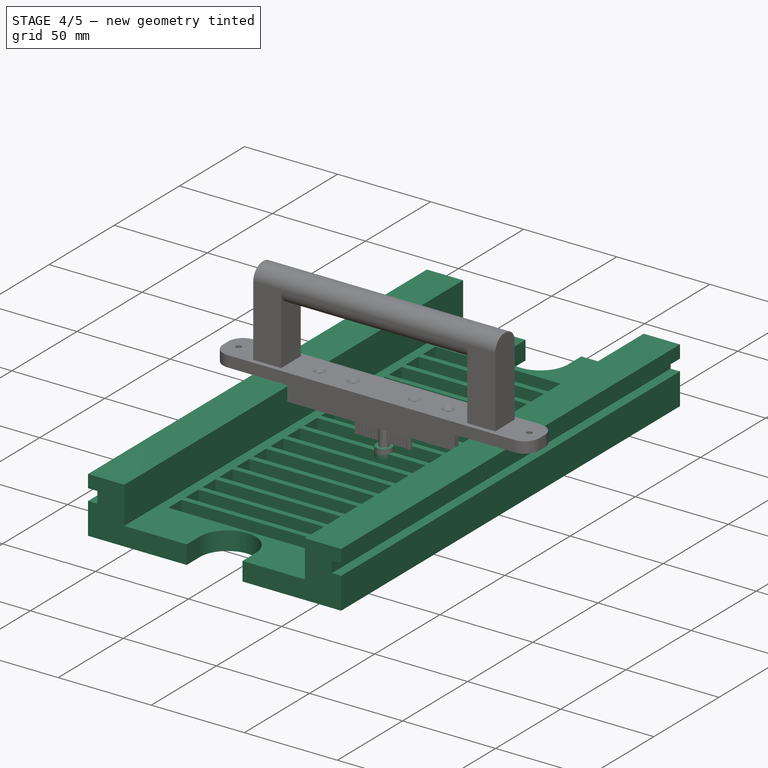
[diagram: stage 4 of 5 — iso view after this stage's code; geometry added in this stage tinted green]
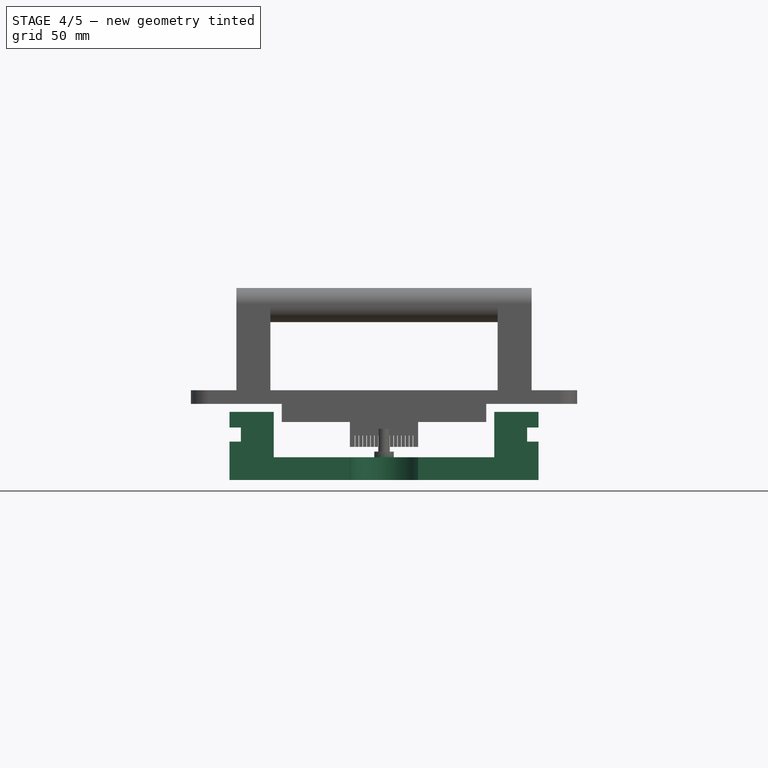
[diagram: stage 4 of 5 — front view after this stage's code; geometry added in this stage tinted green]
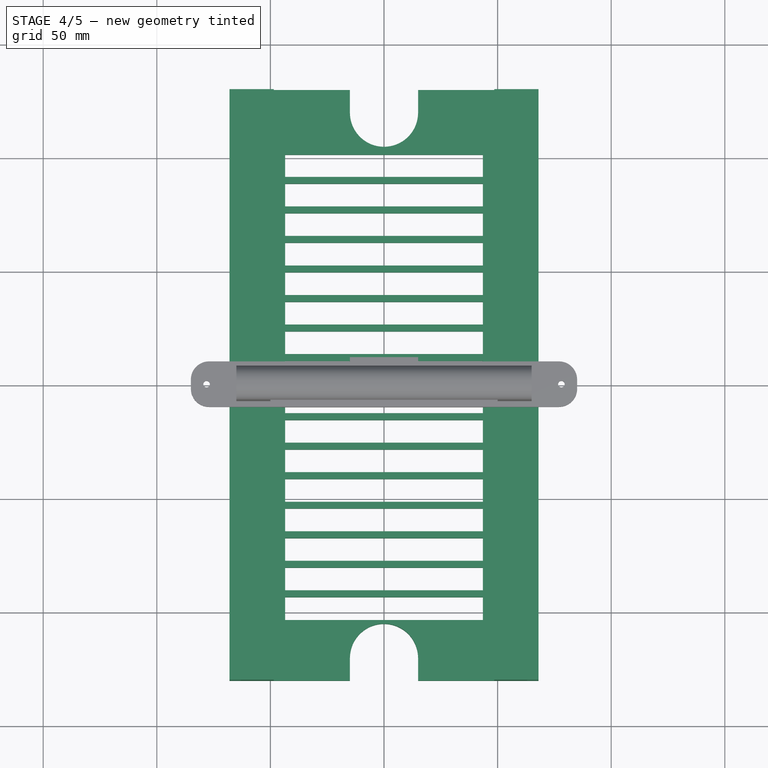
[diagram: stage 4 of 5 — top view after this stage's code; geometry added in this stage tinted green]
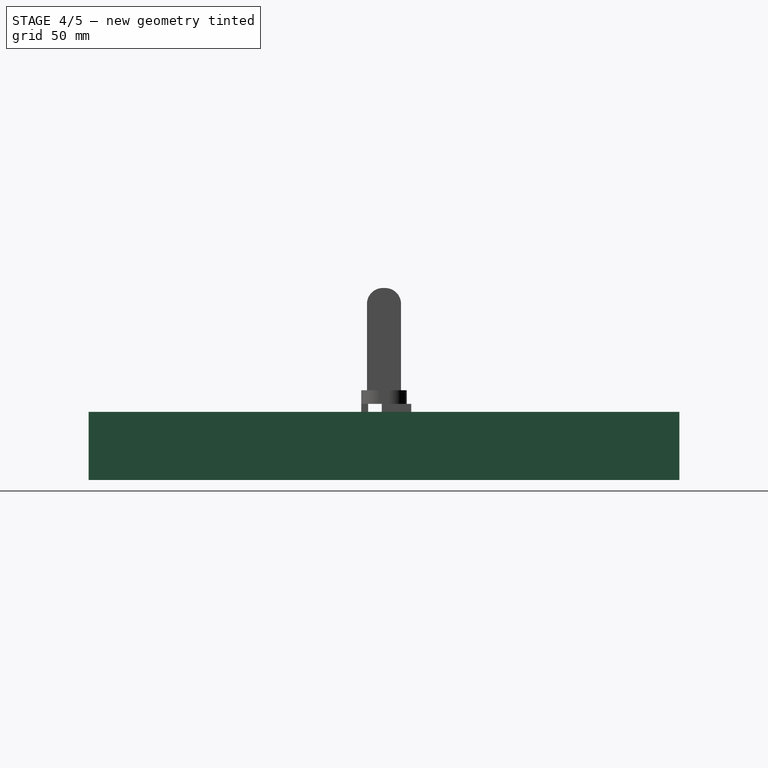
[diagram: stage 4 of 5 — right view after this stage's code; geometry added in this stage tinted green]
FEATURE [Sketcher::SketchObject] Sketch
  FullyConstrained = true
  MapMode = 5
  Support = -> [XY_Plane]
  sketch-geometry (147):
    g0: LineSegment StartX=-48 StartY=-110 StartZ=0 EndX=-48 EndY=110 EndZ=0
    g1: LineSegment StartX=-48 StartY=110 StartZ=0 EndX=48 EndY=110 EndZ=0
    g2: LineSegment StartX=48 StartY=110 StartZ=0 EndX=48 EndY=-110 EndZ=0
    g3: LineSegment StartX=48 StartY=-110 StartZ=0 EndX=-48 EndY=-110 EndZ=0
    g4: GeomPoint X=0 Y=0 Z=0
    g5: LineSegment StartX=43.5 StartY=-103.35 StartZ=0 EndX=-43.5 EndY=-103.35 EndZ=0
    g6: GeomPoint X=0 Y=0 Z=0
    g7: LineSegment StartX=-43.5 StartY=88.75 StartZ=0 EndX=-43.5 EndY=91.75 EndZ=0
    g8: LineSegment StartX=-43.5 StartY=91.75 StartZ=0 EndX=43.5 EndY=91.75 EndZ=0
    g9: LineSegment StartX=43.5 StartY=91.75 StartZ=0 EndX=43.5 EndY=88.75 EndZ=0
    g10: LineSegment StartX=43.5 StartY=88.75 StartZ=0 EndX=-43.5 EndY=88.75 EndZ=0
    g11: GeomPoint X=0 Y=90.25 Z=0
    g12: LineSegment StartX=-43.5 StartY=105 StartZ=0 EndX=-43.5 EndY=101.5 EndZ=0
    g13: LineSegment StartX=-43.5 StartY=101.5 StartZ=0 EndX=43.5 EndY=101.5 EndZ=0
    g14: LineSegment StartX=43.5 StartY=101.5 StartZ=0 EndX=43.5 EndY=105 EndZ=0
    g15: LineSegment StartX=43.5 StartY=105 StartZ=0 EndX=-43.5 EndY=105 EndZ=0
    g16: GeomPoint X=0 Y=103.25 Z=0
    g17: LineSegment StartX=-43.5 StartY=101.5 StartZ=0 EndX=-43.5 EndY=91.75 EndZ=0
    g18: LineSegment StartX=-43.5 StartY=75.75 StartZ=0 EndX=-43.5 EndY=78.75 EndZ=0
    g19: LineSegment StartX=-43.5 StartY=78.75 StartZ=0 EndX=43.5 EndY=78.75 EndZ=0
    g20: LineSegment StartX=43.5 StartY=78.75 StartZ=0 EndX=43.5 EndY=75.75 EndZ=0
    g21: LineSegment StartX=43.5 StartY=75.75 StartZ=0 EndX=-43.5 EndY=75.75 EndZ=0
    g22: GeomPoint X=0 Y=77.25 Z=0
    g23: LineSegment StartX=-43.5 StartY=65.75 StartZ=0 EndX=-43.5 EndY=62.75 EndZ=0
    g24: LineSegment StartX=-43.5 StartY=62.75 StartZ=0 EndX=43.5 EndY=62.75 EndZ=0
    g25: LineSegment StartX=43.5 StartY=62.75 StartZ=0 EndX=43.5 EndY=65.75 EndZ=0
    g26: LineSegment StartX=43.5 StartY=65.75 StartZ=0 EndX=-43.5 EndY=65.75 EndZ=0
    g27: GeomPoint X=0 Y=64.25 Z=0
    g28: LineSegment StartX=-43.5 StartY=49.75 StartZ=0 EndX=-43.5 EndY=52.75 EndZ=0
    g29: LineSegment StartX=-43.5 StartY=52.75 StartZ=0 EndX=43.5 EndY=52.75 EndZ=0
    g30: LineSegment StartX=43.5 StartY=52.75 StartZ=0 EndX=43.5 EndY=49.75 EndZ=0
    g31: LineSegment StartX=43.5 StartY=49.75 StartZ=0 EndX=-43.5 EndY=49.75 EndZ=0
    g32: GeomPoint X=0 Y=51.25 Z=0
    g33: LineSegment StartX=-43.5 StartY=39.75 StartZ=0 EndX=-43.5 EndY=36.75 EndZ=0
    g34: LineSegment StartX=-43.5 StartY=36.75 StartZ=0 EndX=43.5 EndY=36.75 EndZ=0
    g35: LineSegment StartX=43.5 StartY=36.75 StartZ=0 EndX=43.5 EndY=39.75 EndZ=0
    g36: LineSegment StartX=43.5 StartY=39.75 StartZ=0 EndX=-43.5 EndY=39.75 EndZ=0
    g37: GeomPoint X=0 Y=38.25 Z=0
    g38: LineSegment StartX=-43.5 StartY=23.75 StartZ=0 EndX=-43.5 EndY=26.75 EndZ=0
    g39: LineSegment StartX=-43.5 StartY=26.75 StartZ=0 EndX=43.5 EndY=26.75 EndZ=0
    g40: LineSegment StartX=43.5 StartY=26.75 StartZ=0 EndX=43.5 EndY=23.75 EndZ=0
    g41: LineSegment StartX=43.5 StartY=23.75 StartZ=0 EndX=-43.5 EndY=23.75 EndZ=0
    g42: GeomPoint X=0 Y=25.25 Z=0
    g43: LineSegment StartX=-43.5 StartY=10.75 StartZ=0 EndX=-43.5 EndY=13.75 EndZ=0
    g44: LineSegment StartX=-43.5 StartY=13.75 StartZ=0 EndX=43.5 EndY=13.75 EndZ=0
    g45: LineSegment StartX=43.5 StartY=13.75 StartZ=0 EndX=43.5 EndY=10.75 EndZ=0
    g46: LineSegment StartX=43.5 StartY=10.75 StartZ=0 EndX=-43.5 EndY=10.75 EndZ=0
    g47: GeomPoint X=0 Y=12.25 Z=0
    g48: LineSegment StartX=-43.5 StartY=-2.25 StartZ=0 EndX=-43.5 EndY=0.75 EndZ=0
    g49: LineSegment StartX=-43.5 StartY=0.75 StartZ=0 EndX=43.5 EndY=0.75 EndZ=0
    g50: LineSegment StartX=43.5 StartY=0.75 StartZ=0 EndX=43.5 EndY=-2.25 EndZ=0
    g51: LineSegment StartX=43.5 StartY=-2.25 StartZ=0 EndX=-43.5 EndY=-2.25 EndZ=0
    g52: GeomPoint X=0 Y=-0.75 Z=0
    g53: LineSegment StartX=-43.5 StartY=-15.25 StartZ=0 EndX=-43.5 EndY=-12.25 EndZ=0
    g54: LineSegment StartX=-43.5 StartY=-12.25 StartZ=0 EndX=43.5 EndY=-12.25 EndZ=0
    g55: LineSegment StartX=43.5 StartY=-12.25 StartZ=0 EndX=43.5 EndY=-15.25 EndZ=0
    g56: LineSegment StartX=43.5 StartY=-15.25 StartZ=0 EndX=-43.5 EndY=-15.25 EndZ=0
    g57: GeomPoint X=0 Y=-13.75 Z=0
    g58: LineSegment StartX=-43.5 StartY=-28.25 StartZ=0 EndX=-43.5 EndY=-25.25 EndZ=0
    g59: LineSegment StartX=-43.5 StartY=-25.25 StartZ=0 EndX=43.5 EndY=-25.25 EndZ=0
    g60: LineSegment StartX=43.5 StartY=-25.25 StartZ=0 EndX=43.5 EndY=-28.25 EndZ=0
    g61: LineSegment StartX=43.5 StartY=-28.25 StartZ=0 EndX=-43.5 EndY=-28.25 EndZ=0
    g62: GeomPoint X=0 Y=-26.75 Z=0
    g63: LineSegment StartX=-43.5 StartY=-41.25 StartZ=0 EndX=-43.5 EndY=-38.25 EndZ=0
    g64: LineSegment StartX=-43.5 StartY=-38.25 StartZ=0 EndX=43.5 EndY=-38.25 EndZ=0
    g65: LineSegment StartX=43.5 StartY=-38.25 StartZ=0 EndX=43.5 EndY=-41.25 EndZ=0
    g66: LineSegment StartX=43.5 StartY=-41.25 StartZ=0 EndX=-43.5 EndY=-41.25 EndZ=0
    g67: GeomPoint X=0 Y=-39.75 Z=0
    g68: LineSegment StartX=-43.5 StartY=-54.25 StartZ=0 EndX=-43.5 EndY=-51.25 EndZ=0
    g69: LineSegment StartX=-43.5 StartY=-51.25 StartZ=0 EndX=43.5 EndY=-51.25 EndZ=0
    g70: LineSegment StartX=43.5 StartY=-51.25 StartZ=0 EndX=43.5 EndY=-54.25 EndZ=0
    g71: LineSegment StartX=43.5 StartY=-54.25 StartZ=0 EndX=-43.5 EndY=-54.25 EndZ=0
    g72: GeomPoint X=0 Y=-52.75 Z=0
    g73: LineSegment StartX=-43.5 StartY=-67.25 StartZ=0 EndX=-43.5 EndY=-64.25 EndZ=0
    g74: LineSegment StartX=-43.5 StartY=-64.25 StartZ=0 EndX=43.5 EndY=-64.25 EndZ=0
    g75: LineSegment StartX=43.5 StartY=-64.25 StartZ=0 EndX=43.5 EndY=-67.25 EndZ=0
    g76: LineSegment StartX=43.5 StartY=-67.25 StartZ=0 EndX=-43.5 EndY=-67.25 EndZ=0
    g77: GeomPoint X=0 Y=-65.75 Z=0
    g78: LineSegment StartX=-43.5 StartY=-80.25 StartZ=0 EndX=-43.5 EndY=-77.25 EndZ=0
    g79: LineSegment StartX=-43.5 StartY=-77.25 StartZ=0 EndX=43.5 EndY=-77.25 EndZ=0
    g80: LineSegment StartX=43.5 StartY=-77.25 StartZ=0 EndX=43.5 EndY=-80.25 EndZ=0
    g81: LineSegment StartX=43.5 StartY=-80.25 StartZ=0 EndX=-43.5 EndY=-80.25 EndZ=0
    g82: GeomPoint X=0 Y=-78.75 Z=0
    g83: LineSegment StartX=-43.5 StartY=-93.25 StartZ=0 EndX=-43.5 EndY=-90.25 EndZ=0
    g84: LineSegment StartX=-43.5 StartY=-90.25 StartZ=0 EndX=43.5 EndY=-90.25 EndZ=0
    g85: LineSegment StartX=43.5 StartY=-90.25 StartZ=0 EndX=43.5 EndY=-93.25 EndZ=0
    g86: LineSegment StartX=43.5 StartY=-93.25 StartZ=0 EndX=-43.5 EndY=-93.25 EndZ=0
    g87: GeomPoint X=0 Y=-91.75 Z=0
    g88: LineSegment StartX=-43.5 StartY=88.75 StartZ=0 EndX=-43.5 EndY=78.75 EndZ=0
    g89: LineSegment StartX=-43.5 StartY=75.75 StartZ=0 EndX=-43.5 EndY=65.75 EndZ=0
    g90: LineSegment StartX=-43.5 StartY=62.75 StartZ=0 EndX=-43.5 EndY=52.75 EndZ=0
    g91: LineSegment StartX=-43.5 StartY=49.75 StartZ=0 EndX=-43.5 EndY=39.75 EndZ=0
    g92: LineSegment StartX=-43.5 StartY=36.75 StartZ=0 EndX=-43.5 EndY=26.75 EndZ=0
    g93: LineSegment StartX=-43.5 StartY=23.75 StartZ=0 EndX=-43.5 EndY=13.75 EndZ=0
    g94: LineSegment StartX=-43.5 StartY=10.75 StartZ=0 EndX=-43.5 EndY=0.75 EndZ=0
    g95: LineSegment StartX=-43.5 StartY=-2.25 StartZ=0 EndX=-43.5 EndY=-12.25 EndZ=0
    g96: LineSegment StartX=-43.5 StartY=-15.25 StartZ=0 EndX=-43.5 EndY=-25.25 EndZ=0
    g97: LineSegment StartX=-43.5 StartY=-28.25 StartZ=0 EndX=-43.5 EndY=-38.25 EndZ=0
    g98: LineSegment StartX=-43.5 StartY=-41.25 StartZ=0 EndX=-43.5 EndY=-51.25 EndZ=0
    g99: LineSegment StartX=-43.5 StartY=-54.25 StartZ=0 EndX=-43.5 EndY=-64.25 EndZ=0
    g100: LineSegment StartX=-43.5 StartY=-67.25 StartZ=0 EndX=-43.5 EndY=-77.25 EndZ=0
    g101: LineSegment StartX=-43.5 StartY=-80.25 StartZ=0 EndX=-43.5 EndY=-90.25 EndZ=0
    g102: LineSegment StartX=-43.5 StartY=-93.25 StartZ=0 EndX=-43.5 EndY=-103.35 EndZ=0
    g103: LineSegment StartX=-68 StartY=130 StartZ=0 EndX=-68 EndY=-130 EndZ=0
    g104: LineSegment StartX=-68 StartY=-130 StartZ=0 EndX=-15 EndY=-130 EndZ=0
    g105: LineSegment StartX=68 StartY=-130 StartZ=0 EndX=68 EndY=130 EndZ=0
    g106: LineSegment StartX=68 StartY=130 StartZ=0 EndX=15 EndY=130 EndZ=0
    g107: GeomPoint X=0 Y=0 Z=0
    g108: LineSegment StartX=0 StartY=103.25 StartZ=0 EndX=0 EndY=90.25 EndZ=0
    g109: LineSegment StartX=0 StartY=90.25 StartZ=0 EndX=0 EndY=77.25 EndZ=0
    g110: LineSegment StartX=0 StartY=77.25 StartZ=0 EndX=0 EndY=64.25 EndZ=0
    g111: LineSegment StartX=0 StartY=64.25 StartZ=0 EndX=0 EndY=51.25 EndZ=0
    g112: LineSegment StartX=0 StartY=51.25 StartZ=0 EndX=0 EndY=38.25 EndZ=0
    g113: LineSegment StartX=0 StartY=38.25 StartZ=0 EndX=0 EndY=25.25 EndZ=0
    g114: LineSegment StartX=0 StartY=25.25 StartZ=0 EndX=0 EndY=12.25 EndZ=0
    g115: LineSegment StartX=0 StartY=12.25 StartZ=0 EndX=0 EndY=-0.75 EndZ=0
    g116: LineSegment StartX=0 StartY=-0.75 StartZ=0 EndX=0 EndY=-13.75 EndZ=0
    g117: LineSegment StartX=0 StartY=-13.75 StartZ=0 EndX=0 EndY=-26.75 EndZ=0
    g118: LineSegment StartX=0 StartY=-26.75 StartZ=0 EndX=0 EndY=-39.75 EndZ=0
    g119: LineSegment StartX=0 StartY=-39.75 StartZ=0 EndX=0 EndY=-52.75 EndZ=0
    g120: LineSegment StartX=0 StartY=-52.75 StartZ=0 EndX=0 EndY=-65.75 EndZ=0
    g121: LineSegment StartX=0 StartY=-65.75 StartZ=0 EndX=0 EndY=-78.75 EndZ=0
    g122: LineSegment StartX=0 StartY=-78.75 StartZ=0 EndX=0 EndY=-91.75 EndZ=0
    g123: LineSegment StartX=43.5 StartY=-103.35 StartZ=0 EndX=43.5 EndY=-93.25 EndZ=0
    g124: LineSegment StartX=43.5 StartY=-90.25 StartZ=0 EndX=43.5 EndY=-80.25 EndZ=0
    g125: LineSegment StartX=43.5 StartY=-77.25 StartZ=0 EndX=43.5 EndY=-67.25 EndZ=0
    g126: LineSegment StartX=43.5 StartY=-64.25 StartZ=0 EndX=43.5 EndY=-54.25 EndZ=0
    g127: LineSegment StartX=43.5 StartY=-51.25 StartZ=0 EndX=43.5 EndY=-41.25 EndZ=0
    g128: LineSegment StartX=43.5 StartY=-38.25 StartZ=0 EndX=43.5 EndY=-28.25 EndZ=0
    g129: LineSegment StartX=43.5 StartY=-25.25 StartZ=0 EndX=43.5 EndY=-15.25 EndZ=0
    g130: LineSegment StartX=43.5 StartY=-12.25 StartZ=0 EndX=43.5 EndY=-2.25 EndZ=0
    g131: LineSegment StartX=43.5 StartY=0.75 StartZ=0 EndX=43.5 EndY=10.75 EndZ=0
    g132: LineSegment StartX=43.5 StartY=13.75 StartZ=0 EndX=43.5 EndY=23.75 EndZ=0
    g133: LineSegment StartX=43.5 StartY=26.75 StartZ=0 EndX=43.5 EndY=36.75 EndZ=0
    g134: LineSegment StartX=43.5 StartY=39.75 StartZ=0 EndX=43.5 EndY=49.75 EndZ=0
    g135: LineSegment StartX=43.5 StartY=52.75 StartZ=0 EndX=43.5 EndY=62.75 EndZ=0
    g136: LineSegment StartX=43.5 StartY=65.75 StartZ=0 EndX=43.5 EndY=75.75 EndZ=0
    g137: LineSegment StartX=43.5 StartY=78.75 StartZ=0 EndX=43.5 EndY=88.75 EndZ=0
    g138: LineSegment StartX=43.5 StartY=91.75 StartZ=0 EndX=43.5 EndY=101.5 EndZ=0
    g139: LineSegment StartX=15 StartY=-130 StartZ=0 EndX=68 EndY=-130 EndZ=0
    g140: LineSegment StartX=-15 StartY=130 StartZ=0 EndX=-68 EndY=130 EndZ=0
    g141: ArcOfCircle CenterX=0 CenterY=-120 CenterZ=0 NormalX=0 NormalY=0 NormalZ=1 AngleXU=0 Radius=15 StartAngle=2e-16 EndAngle=3.14159
    g142: LineSegment StartX=-15 StartY=-130 StartZ=0 EndX=-15 EndY=-120 EndZ=0
    g143: LineSegment StartX=15 StartY=-130 StartZ=0 EndX=15 EndY=-120 EndZ=0
    g144: ArcOfCircle CenterX=0 CenterY=120 CenterZ=0 NormalX=0 NormalY=0 NormalZ=1 AngleXU=0 Radius=15 StartAngle=3.14159 EndAngle=6.28319
    g145: LineSegment StartX=-15 StartY=130 StartZ=0 EndX=-15 EndY=120 EndZ=0
    g146: LineSegment StartX=15 StartY=130 StartZ=0 EndX=15 EndY=120 EndZ=0
  constraints (355):
    c: Coincident(g0,g1)
    c: Coincident(g1,g2)
    c: Coincident(g2,g3)
    c: Coincident(g3,g0)
    c: Horizontal(g1)
    c: Horizontal(g3)
    c: Vertical(g0)
    c: Vertical(g2)
    c: Symmetric(g1,g0,g4)
    c: Coincident(g4,g-1)
    c: DistanceY(g0,g0) = 220
    c: DistanceX(g1,g1) = 96
    c: Horizontal(g5)
    c: Coincident(g6,g4)
    c: Coincident(g7,g8)
    c: Coincident(g8,g9)
    c: Coincident(g9,g10)
    c: Coincident(g10,g7)
    c: Horizontal(g8)
    c: Horizontal(g10)
    c: Vertical(g7)
    c: Vertical(g9)
    c: Symmetric(g8,g7,g11)
    c: PointOnObject(g11,g-2)
    c: Coincident(g12,g13)
    c: Coincident(g13,g14)
    c: Coincident(g14,g15)
    c: Coincident(g15,g12)
    c: Horizontal(g13)
    c: Horizontal(g15)
    c: Vertical(g12)
    c: Vertical(g14)
    c: Symmetric(g13,g12,g16)
    c: PointOnObject(g16,g-2)
    c: DistanceY(g14,g1) = 5
    c: DistanceX(g14,g1) = 4.5
    c: DistanceY(g14,g14) = 3.5
    c: Coincident(g17,g12)
    c: Coincident(g17,g7)
    c: Coincident(g18,g19)
    c: Coincident(g19,g20)
    c: Coincident(g20,g21)
    c: Coincident(g21,g18)
    c: Horizontal(g19)
    c: Horizontal(g21)
    c: Vertical(g18)
    c: Vertical(g20)
    c: Symmetric(g19,g18,g22)
    c: PointOnObject(g22,g-2)
    c: Coincident(g23,g24)
    c: Coincident(g24,g25)
    c: Coincident(g25,g26)
    c: Coincident(g26,g23)
    c: Horizontal(g24)
    c: Horizontal(g26)
    c: Vertical(g23)
    c: Vertical(g25)
    c: Symmetric(g24,g23,g27)
    c: PointOnObject(g27,g-2)
    c: Coincident(g28,g29)
    c: Coincident(g29,g30)
    c: Coincident(g30,g31)
    c: Coincident(g31,g28)
    c: Horizontal(g29)
    c: Horizontal(g31)
    c: Vertical(g28)
    c: Vertical(g30)
    c: Symmetric(g29,g28,g32)
    c: PointOnObject(g32,g-2)
    c: Coincident(g33,g34)
    c: Coincident(g34,g35)
    c: Coincident(g35,g36)
    c: Coincident(g36,g33)
    c: Horizontal(g34)
    c: Horizontal(g36)
    c: Vertical(g33)
    c: Vertical(g35)
    c: Symmetric(g34,g33,g37)
    c: PointOnObject(g37,g-2)
    c: Coincident(g38,g39)
    c: Coincident(g39,g40)
    c: Coincident(g40,g41)
    c: Coincident(g41,g38)
    c: Horizontal(g39)
    c: Horizontal(g41)
    c: Vertical(g38)
    c: Vertical(g40)
    c: Symmetric(g39,g38,g42)
    c: PointOnObject(g42,g-2)
    c: Coincident(g43,g44)
    c: Coincident(g44,g45)
    c: Coincident(g45,g46)
    c: Coincident(g46,g43)
    c: Horizontal(g44)
    c: Horizontal(g46)
    c: Vertical(g43)
    c: Vertical(g45)
    c: Symmetric(g44,g43,g47)
    c: PointOnObject(g47,g-2)
    c: Coincident(g48,g49)
    c: Coincident(g49,g50)
    c: Coincident(g50,g51)
    c: Coincident(g51,g48)
    c: Horizontal(g49)
    c: Horizontal(g51)
    c: Vertical(g48)
    c: Vertical(g50)
    c: Symmetric(g49,g48,g52)
    c: PointOnObject(g52,g-2)
    c: Coincident(g53,g54)
    c: Coincident(g54,g55)
    c: Coincident(g55,g56)
    c: Coincident(g56,g53)
    c: Horizontal(g54)
    c: Horizontal(g56)
    c: Vertical(g53)
    c: Vertical(g55)
    c: Symmetric(g54,g53,g57)
    c: PointOnObject(g57,g-2)
    c: Coincident(g58,g59)
    c: Coincident(g59,g60)
    c: Coincident(g60,g61)
    c: Coincident(g61,g58)
    c: Horizontal(g59)
    c: Horizontal(g61)
    c: Vertical(g58)
    c: Vertical(g60)
    c: Symmetric(g59,g58,g62)
    c: PointOnObject(g62,g-2)
    c: Coincident(g63,g64)
    c: Coincident(g64,g65)
    c: Coincident(g65,g66)
    c: Coincident(g66,g63)
    c: Horizontal(g64)
    c: Horizontal(g66)
    c: Vertical(g63)
    c: Vertical(g65)
    c: Symmetric(g64,g63,g67)
    c: PointOnObject(g67,g-2)
    c: Coincident(g68,g69)
    c: Coincident(g69,g70)
    c: Coincident(g70,g71)
    c: Coincident(g71,g68)
    c: Horizontal(g69)
    c: Horizontal(g71)
    c: Vertical(g68)
    c: Vertical(g70)
    c: Symmetric(g69,g68,g72)
    c: PointOnObject(g72,g-2)
    c: Coincident(g73,g74)
    c: Coincident(g74,g75)
    c: Coincident(g75,g76)
    c: Coincident(g76,g73)
    c: Horizontal(g74)
    c: Horizontal(g76)
    c: Vertical(g73)
    c: Vertical(g75)
    c: Symmetric(g74,g73,g77)
    c: PointOnObject(g77,g-2)
    c: Coincident(g78,g79)
    c: Coincident(g79,g80)
    c: Coincident(g80,g81)
    c: Coincident(g81,g78)
    c: Horizontal(g79)
    c: Horizontal(g81)
    c: Vertical(g78)
    c: Vertical(g80)
    c: Symmetric(g79,g78,g82)
    c: PointOnObject(g82,g-2)
    c: Coincident(g83,g84)
    c: Coincident(g84,g85)
    c: Coincident(g85,g86)
    c: Coincident(g86,g83)
    c: Horizontal(g84)
    c: Horizontal(g86)
    c: Vertical(g83)
    c: Vertical(g85)
    c: Symmetric(g84,g83,g87)
    c: PointOnObject(g87,g-2)
    c: Equal(g15,g19)
    c: Equal(g19,g26)
    c: Equal(g26,g29)
    c: Equal(g29,g36)
    c: Equal(g36,g39)
    c: Equal(g39,g44)
    c: Equal(g44,g49)
    c: Equal(g49,g54)
    c: Equal(g54,g59)
    c: Equal(g59,g64)
    c: Equal(g64,g69)
    c: Equal(g69,g74)
    c: Equal(g74,g79)
    c: Equal(g79,g84)
    c: Coincident(g88,g10)
    c: Coincident(g88,g19)
    c: Coincident(g89,g21)
    c: Coincident(g89,g26)
    c: Coincident(g90,g24)
    c: Coincident(g90,g29)
    c: Coincident(g91,g31)
    c: Coincident(g91,g36)
    c: Coincident(g92,g34)
    c: Coincident(g92,g39)
    c: Coincident(g93,g41)
    c: Coincident(g93,g44)
    c: Coincident(g94,g46)
    c: Coincident(g94,g49)
    c: Coincident(g95,g51)
    c: Coincident(g95,g54)
    c: Coincident(g96,g56)
    c: Coincident(g96,g59)
    c: Coincident(g97,g61)
    c: Coincident(g97,g64)
    c: Coincident(g98,g66)
    c: Coincident(g98,g69)
    c: Coincident(g99,g71)
    c: Coincident(g99,g74)
    c: Coincident(g100,g76)
    c: Coincident(g100,g79)
    c: Coincident(g101,g81)
    c: Coincident(g101,g84)
    c: Equal(g5,g15)
    c: Coincident(g102,g86)
    c: Coincident(g102,g5)
    c: DistanceY(g5,g84) = 13.1
    c: Coincident(g103,g104)
    c: Coincident(g139,g105)
    c: Coincident(g105,g106)
    c: Coincident(g140,g103)
    c: Horizontal(g104)
    c: Horizontal(g106)
    c: Vertical(g103)
    c: Vertical(g105)
    c: Symmetric(g139,g103,g107)
    c: Coincident(g107,g4)
    c: DistanceX(g1,g105) = 20
    c: DistanceY(g1,g105) = 20
    c: Coincident(g108,g16)
    c: Coincident(g108,g11)
    c: DistanceY(g108,g108) = 13
    c: Coincident(g109,g11)
    c: Coincident(g109,g22)
    c: Coincident(g110,g109)
    c: Coincident(g110,g27)
    c: Coincident(g111,g110)
    c: Coincident(g111,g32)
    c: Coincident(g112,g111)
    c: Coincident(g112,g37)
    c: Coincident(g113,g112)
    c: Coincident(g113,g42)
    c: Coincident(g114,g113)
    c: Coincident(g114,g47)
    c: Coincident(g115,g114)
    c: Coincident(g115,g52)
    c: Coincident(g116,g115)
    c: Coincident(g116,g57)
    c: Coincident(g117,g116)
    c: Coincident(g117,g62)
    c: Coincident(g118,g117)
    c: Coincident(g118,g67)
    c: Coincident(g119,g118)
    c: Coincident(g119,g72)
    c: Coincident(g120,g119)
    c: Coincident(g120,g77)
    c: Coincident(g121,g120)
    c: Coincident(g121,g82)
    c: Coincident(g122,g121)
    c: Coincident(g122,g87)
    c: Equal(g108,g109)
    c: Equal(g109,g110)
    c: Equal(g110,g111)
    c: Equal(g111,g112)
    c: Equal(g112,g113)
    c: Equal(g113,g114)
    c: Equal(g114,g115)
    c: Equal(g115,g116)
    c: Equal(g116,g117)
    c: Equal(g117,g118)
    c: Equal(g118,g119)
    c: Equal(g119,g120)
    c: Equal(g120,g121)
    c: Equal(g121,g122)
    c: Vertical(g17)
    c: DistanceY(g9,g9) = 3
    c: Equal(g9,g20)
    c: Equal(g20,g25)
    c: Equal(g25,g30)
    c: Equal(g30,g35)
    c: Equal(g35,g40)
    c: Equal(g40,g45)
    c: Equal(g45,g50)
    c: Equal(g50,g55)
    c: Equal(g55,g60)
    c: Equal(g60,g65)
    c: Equal(g65,g70)
    c: Equal(g70,g75)
    c: Equal(g75,g80)
    c: Equal(g80,g85)
    c: Vertical(g102)
    c: Coincident(g123,g5)
    c: Coincident(g123,g86)
    c: Coincident(g124,g84)
    c: Coincident(g124,g81)
    c: Coincident(g125,g79)
    c: Coincident(g125,g76)
    c: Coincident(g126,g74)
    c: Coincident(g126,g71)
    c: Coincident(g127,g69)
    c: Coincident(g127,g66)
    c: Coincident(g128,g64)
    c: Coincident(g128,g61)
    c: Coincident(g129,g59)
    c: Coincident(g129,g56)
    c: Coincident(g130,g54)
    c: Coincident(g130,g51)
    c: Coincident(g131,g49)
    c: Coincident(g131,g46)
    c: Coincident(g132,g44)
    c: Coincident(g132,g41)
    c: Coincident(g133,g39)
    c: Coincident(g133,g34)
    c: Coincident(g134,g36)
    c: Coincident(g134,g31)
    c: Coincident(g135,g29)
    c: Coincident(g135,g24)
    c: Coincident(g136,g26)
    c: Coincident(g136,g21)
    c: Coincident(g137,g19)
    c: Coincident(g137,g10)
    c: Coincident(g138,g8)
    c: Coincident(g138,g13)
    c: Horizontal(g139)
    c: Horizontal(g104,g139)
    c: Horizontal(g140)
    c: Horizontal(g140,g106)
    c: DistanceX(g103,g105) = 136
    c: DistanceY(g103,g103) = 260
    c: PointOnObject(g141,g-2)
    c: Diameter(g141) = 30
    c: Coincident(g142,g104)
    c: Vertical(g142)
    c: Coincident(g143,g139)
    c: Vertical(g143)
    c: Tangent(g141,g142) = 1.5708
    c: Tangent(g141,g143) = -1.5708
    c: DistanceY(g143,g143) = 10
    c: PointOnObject(g144,g-2)
    c: Coincident(g145,g140)
    c: Vertical(g145)
    c: Coincident(g146,g106)
    c: Vertical(g146)
    c: Tangent(g144,g146) = 1.5708
    c: Tangent(g144,g145) = -1.5708
    c: Equal(g144,g141)
    c: Equal(g146,g143)
FEATURE [PartDesign::Pad] Pad
  Direction = (0,0,1)
  Length = 10
  Length2 = 10
  Profile = -> Sketch
  ReferenceAxis = -> Sketch [N_Axis]
  Reversed = true
  Type = 0
FEATURE [Sketcher::SketchObject] Sketch001
  FullyConstrained = true
  MapMode = 5
  Placement = pos=(0,0,0) rot=(1,0,0;1.5708rad)
  Support = -> [XZ_Plane]
  sketch-geometry (9):
    g0: LineSegment StartX=-68 StartY=0 StartZ=0 EndX=-48.5 EndY=0 EndZ=0
    g1: LineSegment StartX=-48.5 StartY=0 StartZ=0 EndX=-48.5 EndY=20 EndZ=0
    g2: LineSegment StartX=-48.5 StartY=20 StartZ=0 EndX=-68 EndY=20 EndZ=0
    g3: LineSegment StartX=-68 StartY=20 StartZ=0 EndX=-68 EndY=13.1 EndZ=0
    g4: LineSegment StartX=-68 StartY=6.9 StartZ=0 EndX=-63 EndY=6.9 EndZ=0
    g5: LineSegment StartX=-63 StartY=6.9 StartZ=0 EndX=-63 EndY=13.1 EndZ=0
    g6: LineSegment StartX=-63 StartY=13.1 StartZ=0 EndX=-68 EndY=13.1 EndZ=0
    g7: LineSegment StartX=-68 StartY=6.9 StartZ=0 EndX=-68 EndY=0 EndZ=0
    g8: LineSegment StartX=-68 StartY=10 StartZ=0 EndX=-48.5 EndY=10 EndZ=0
  constraints (26):
    c: Coincident(g0,g1)
    c: Coincident(g1,g2)
    c: Coincident(g2,g3)
    c: Coincident(g7,g0)
    c: Horizontal(g0)
    c: Horizontal(g2)
    c: Vertical(g1)
    c: Vertical(g3)
    c: PointOnObject(g0,g-1)
    c: Coincident(g4,g5)
    c: Coincident(g5,g6)
    c: Horizontal(g4)
    c: Horizontal(g6)
    c: Vertical(g5)
    c: Coincident(g7,g4)
    c: Horizontal(g8)
    c: Symmetric(g3,g4,g8)
    c: Symmetric(g1,g0,g8)
    c: DistanceY(g5,g5) = 6.2
    c: DistanceY(g1,g1) = 20
    c: DistanceX(g0,g-1) = 68
    c: Coincident(g3,g6)
    c: Vertical(g7)
    c: Vertical(g4,g3)
    c: DistanceX(g6,g6) = 5
    c: DistanceX(g1,g-1) = 48.5
FEATURE [PartDesign::Pad] Pad001
  BaseFeature = -> Pad
  Direction = (0,-1,-2e-16)
  Length = 260
  Length2 = 10
  Midplane = true
  Profile = -> Sketch001
  ReferenceAxis = -> Sketch001 [N_Axis]
  Refine = true
  Type = 0
FEATURE [PartDesign::Mirrored] Mirrored
  BaseFeature = -> Pad001
  MirrorPlane = -> Sketch001 [V_Axis]
  Originals = -> [Pad001]
  Refine = true
FEATURE [PartDesign::Body] Body  label="Jig"
  Group = -> [Sketch,Pad,Sketch001,Pad001,Mirrored,Chamfer,DatumPlane,Sketch003,Pad003,Mirrored001,Fillet002]
  Origin = -> Origin
  Tip = -> Fillet002
FEATURE [Sketcher::SketchObject] Sketch005
  FullyConstrained = true
  MapMode = 5
  Support = -> [XY_Plane001]
  sketch-geometry (2):
    g0: Circle CenterX=78.09 CenterY=0 CenterZ=0 NormalX=0 NormalY=0 NormalZ=1 AngleXU=0 Radius=1.435
    g1: Circle CenterX=-78.09 CenterY=0 CenterZ=0 NormalX=0 NormalY=0 NormalZ=1 AngleXU=0 Radius=1.435
  constraints (6):
    c: PointOnObject(g0,g-1)
    c: Diameter(g0) = 2.87
    c: DistanceX(g-1,g0) = 78.09
    c: PointOnObject(g1,g-1)
    c: Equal(g0,g1)
    c: DistanceX(g1,g-1) = 78.09
FEATURE [Sketcher::SketchObject] Sketch006
  FullyConstrained = true
  MapMode = 5
  Support = -> [XY_Plane002]
  sketch-geometry (2):
    g0: Circle CenterX=0 CenterY=0 CenterZ=0 NormalX=0 NormalY=0 NormalZ=1 AngleXU=0 Radius=4.3
    g1: Circle CenterX=0 CenterY=0 CenterZ=0 NormalX=0 NormalY=0 NormalZ=1 AngleXU=0 Radius=1.5
  constraints (4):
    c: Coincident(g0,g-1)
    c: Coincident(g1,g0)
    c: Diameter(g1) = 3
    c: Diameter(g0) = 8.6
FEATURE [PartDesign::Pad] Pad004
  Direction = (0,0,1)
  Length = 5
  Length2 = 10
  Midplane = true
  Profile = -> Sketch006
  ReferenceAxis = -> Sketch006 [N_Axis]
  Type = 0
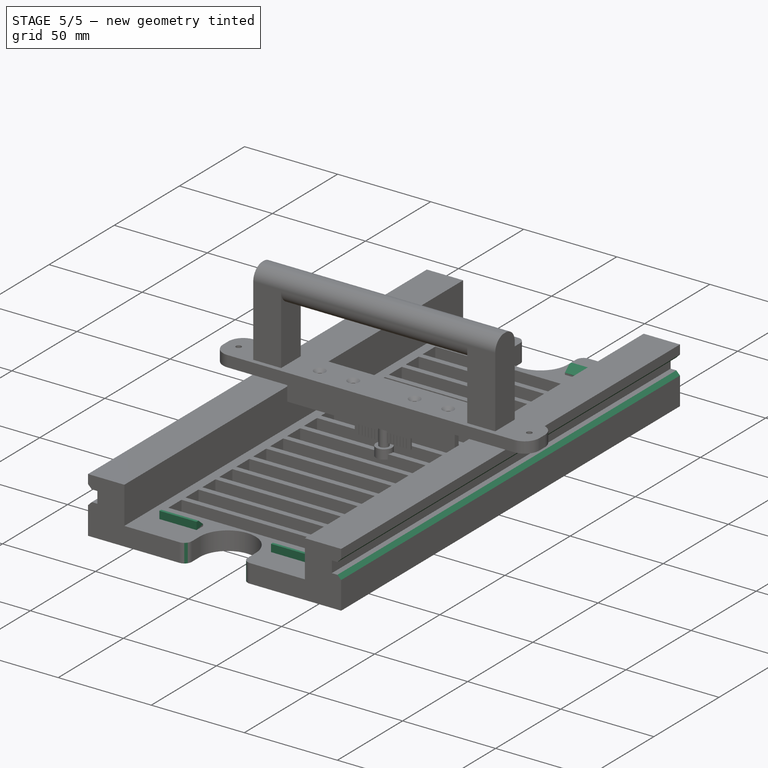
[diagram: stage 5 of 5 — iso view after this stage's code; geometry added in this stage tinted green]
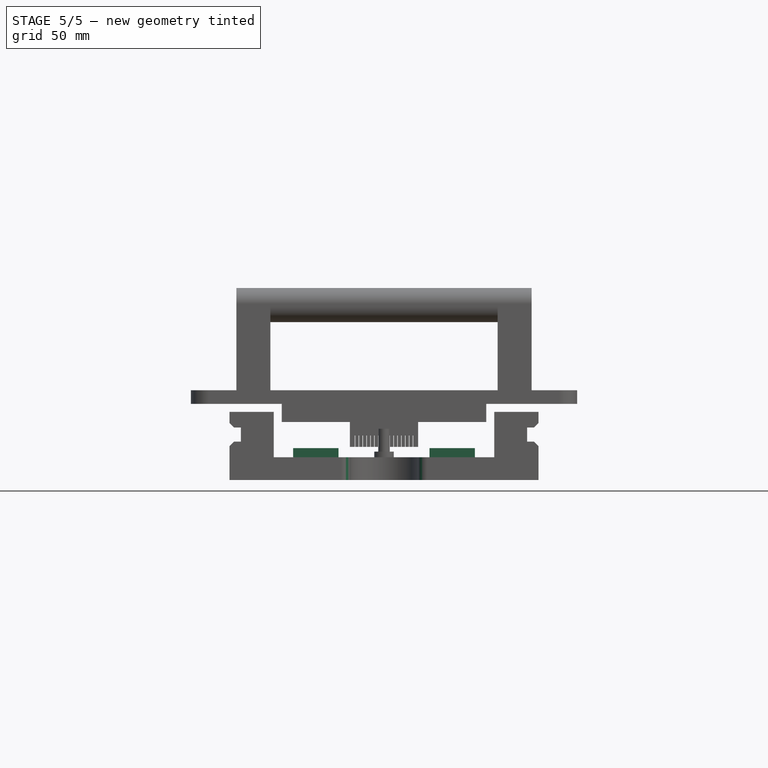
[diagram: stage 5 of 5 — front view after this stage's code; geometry added in this stage tinted green]
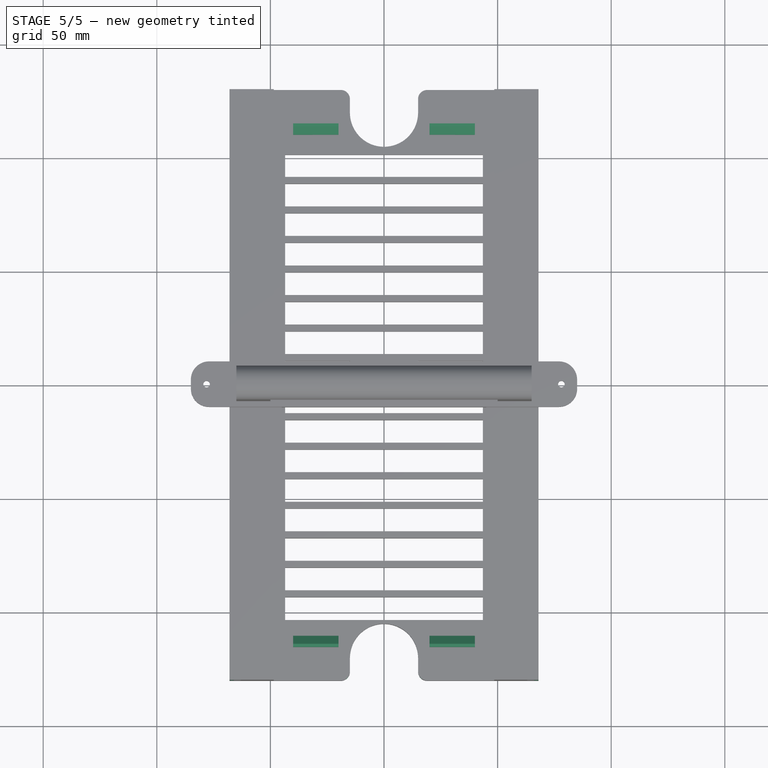
[diagram: stage 5 of 5 — top view after this stage's code; geometry added in this stage tinted green]
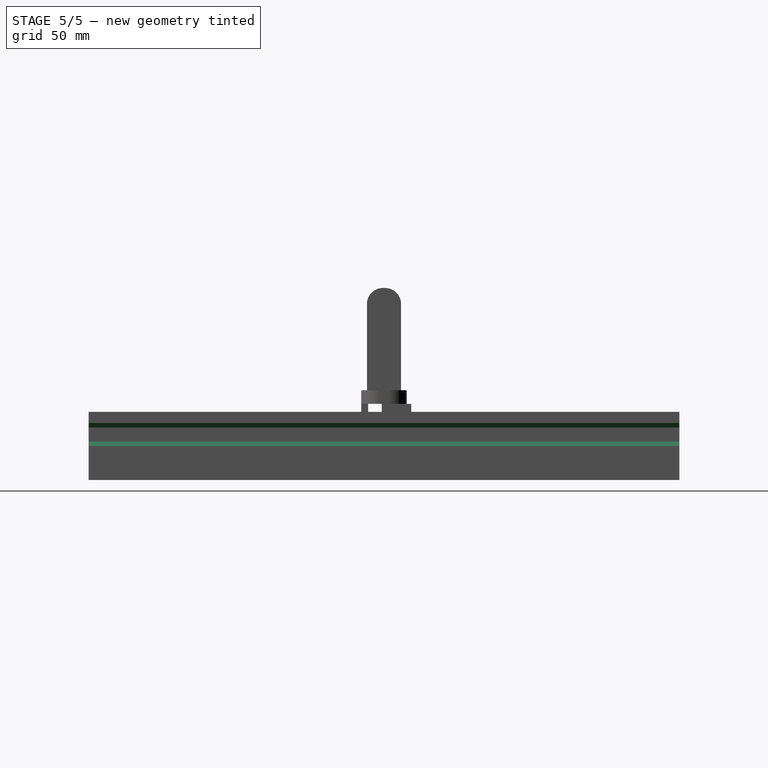
[diagram: stage 5 of 5 — right view after this stage's code; geometry added in this stage tinted green]
FEATURE [PartDesign::Chamfer] Chamfer
  Angle = 45
  Base = -> Mirrored [Edge169,Edge164,Edge260,Edge251]
  BaseFeature = -> Mirrored
  ChamferType = 0
  FlipDirection = false
  Size = 2
  Size2 = 1
  SupportTransform = false
  UseAllEdges = false
FEATURE [PartDesign::Plane] DatumPlane
  AttachmentOffset = pos=(0,0,-20) rot=(0,0,1;0rad)
  Length = 60
  MapMode = 5
  Placement = pos=(-20,4.4e-15,-4.4e-15) rot=(0.57735,0.57735,0.57735;2.0944rad)
  ResizeMode = 0
  Support = -> [YZ_Plane]
  Width = 60
FEATURE [Sketcher::SketchObject] Sketch003
  FullyConstrained = true
  MapMode = 5
  Placement = pos=(-20,4.4e-15,-4.4e-15) rot=(0.57735,0.57735,0.57735;2.0944rad)
  Support = -> [DatumPlane]
  sketch-geometry (10):
    g0: LineSegment StartX=-115.25 StartY=0 StartZ=0 EndX=-115.25 EndY=4 EndZ=0
    g1: LineSegment StartX=-113.825 StartY=4 StartZ=0 EndX=-110.25 EndY=1 EndZ=0
    g2: LineSegment StartX=-110.25 StartY=1 StartZ=0 EndX=-110.25 EndY=0 EndZ=0
    g3: LineSegment StartX=-110.25 StartY=0 StartZ=0 EndX=-115.25 EndY=0 EndZ=0
    g4: LineSegment StartX=115.25 StartY=0 StartZ=0 EndX=115.25 EndY=4 EndZ=0
    g5: LineSegment StartX=113.825 StartY=4 StartZ=0 EndX=110.25 EndY=1 EndZ=0
    g6: LineSegment StartX=110.25 StartY=1 StartZ=0 EndX=110.25 EndY=0 EndZ=0
    g7: LineSegment StartX=110.25 StartY=0 StartZ=0 EndX=115.25 EndY=0 EndZ=0
    g8: LineSegment StartX=-115.25 StartY=4 StartZ=0 EndX=-113.825 EndY=4 EndZ=0
    g9: LineSegment StartX=113.825 StartY=4 StartZ=0 EndX=115.25 EndY=4 EndZ=0
  constraints (30):
    c: PointOnObject(g0,g-1)
    c: Vertical(g2)
    c: Coincident(g3,g0)
    c: Coincident(g2,g1)
    c: Coincident(g2,g3)
    c: Horizontal(g3)
    c: Vertical(g0)
    c: DistanceX(g2,g-1) = 110.25
    c: DistanceX(g3,g3) = 5
    c: Angle(g0,g1) = 0.872665
    c: Vertical(g6)
    c: Coincident(g7,g4)
    c: Coincident(g6,g5)
    c: Coincident(g6,g7)
    c: Horizontal(g7)
    c: Vertical(g4)
    c: Angle(g4,g5) = -0.872665
    c: Equal(g3,g7)
    c: PointOnObject(g6,g-1)
    c: Coincident(g0,g8)
    c: Coincident(g1,g8)
    c: Horizontal(g8)
    c: DistanceY(g0,g0) = 4
    c: Horizontal(g9)
    c: Coincident(g5,g9)
    c: Coincident(g4,g9)
    c: Equal(g9,g8)
    c: Equal(g4,g0)
    c: DistanceY(g2,g2) = 1
    c: DistanceX(g-1,g6) = 110.25
FEATURE [PartDesign::Pad] Pad003
  BaseFeature = -> Chamfer
  Direction = (1,-1e-16,1e-16)
  Length = 20
  Length2 = 10
  Profile = -> Sketch003
  ReferenceAxis = -> Sketch003 [N_Axis]
  Reversed = true
  Type = 0
FEATURE [PartDesign::Mirrored] Mirrored001
  BaseFeature = -> Pad003
  MirrorPlane = -> YZ_Plane
  Originals = -> [Pad003]
FEATURE [PartDesign::Fillet] Fillet002
  Base = -> Mirrored001 [Edge197,Edge200,Edge5,Edge219]
  BaseFeature = -> Mirrored001
  Radius = 4
  SupportTransform = false
  UseAllEdges = false
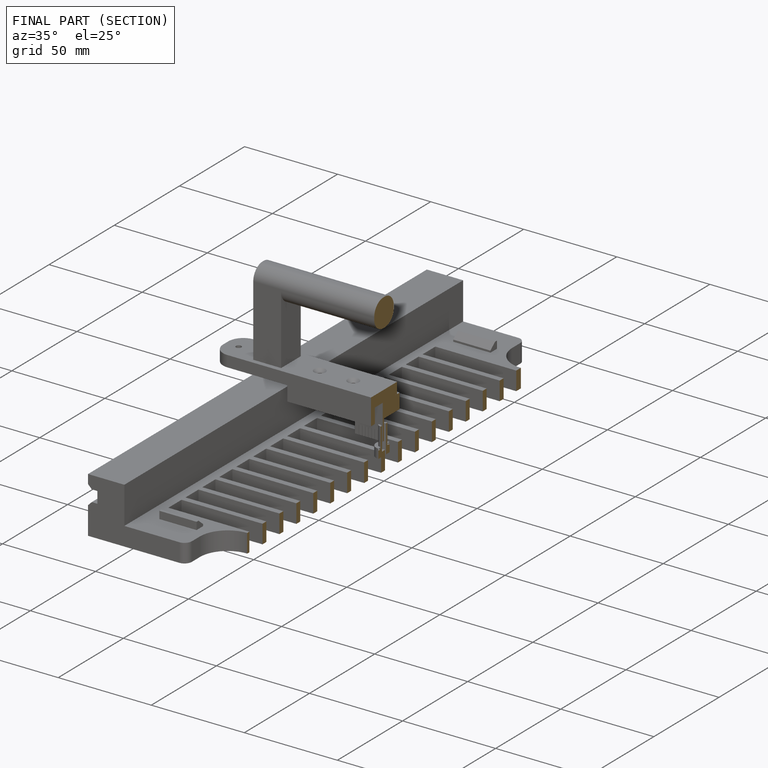
[diagram: finished part — half-section view (interior)]
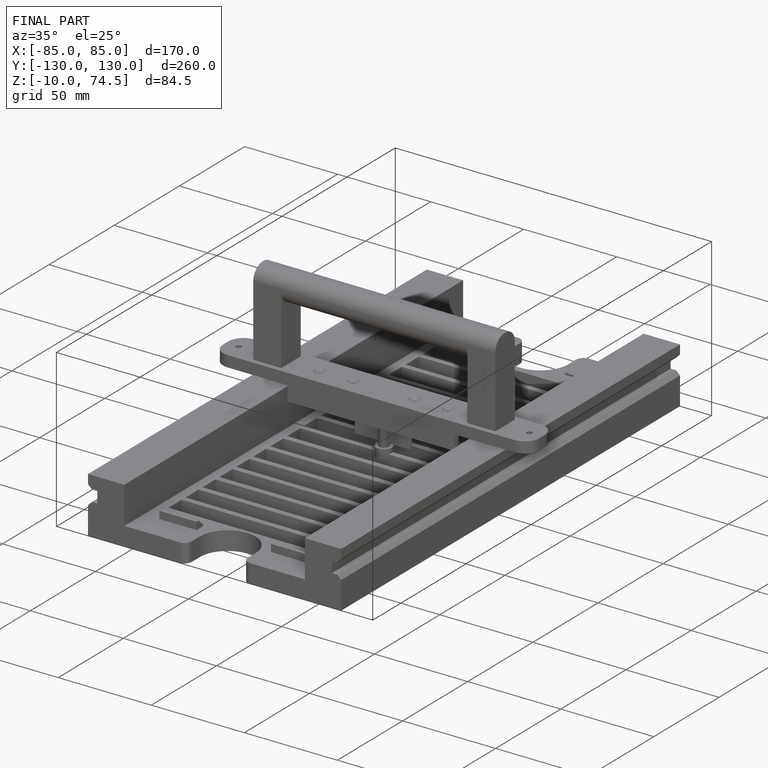
[diagram: finished part — iso view with bounding-box wireframe]
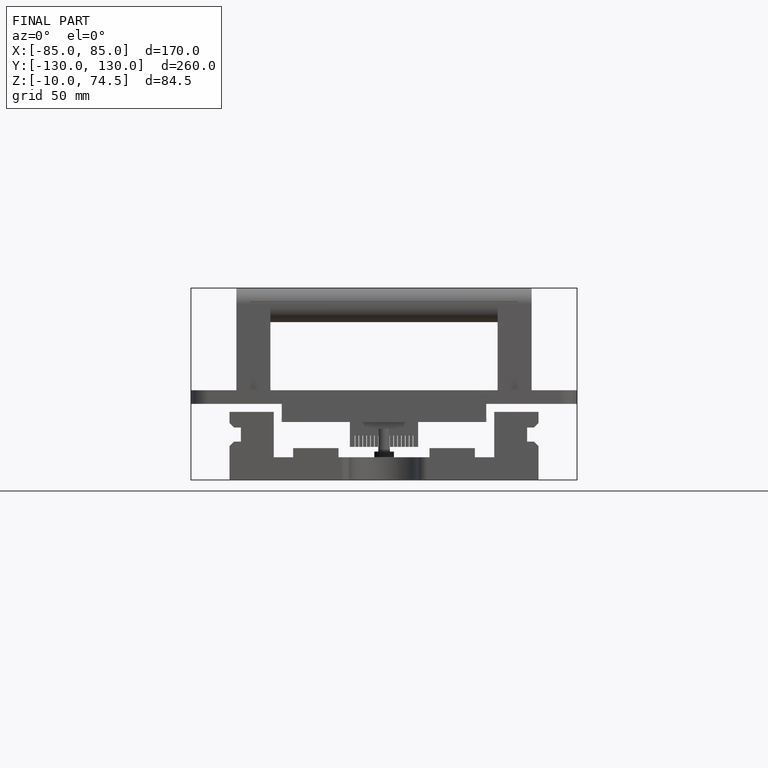
[diagram: finished part — front view with bounding-box wireframe]
